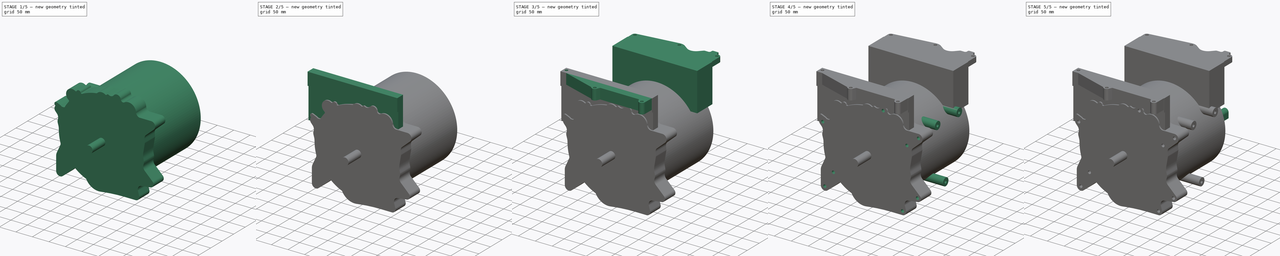
[diagram: build sequence overview — one tinted view per stage of 5, left to right]
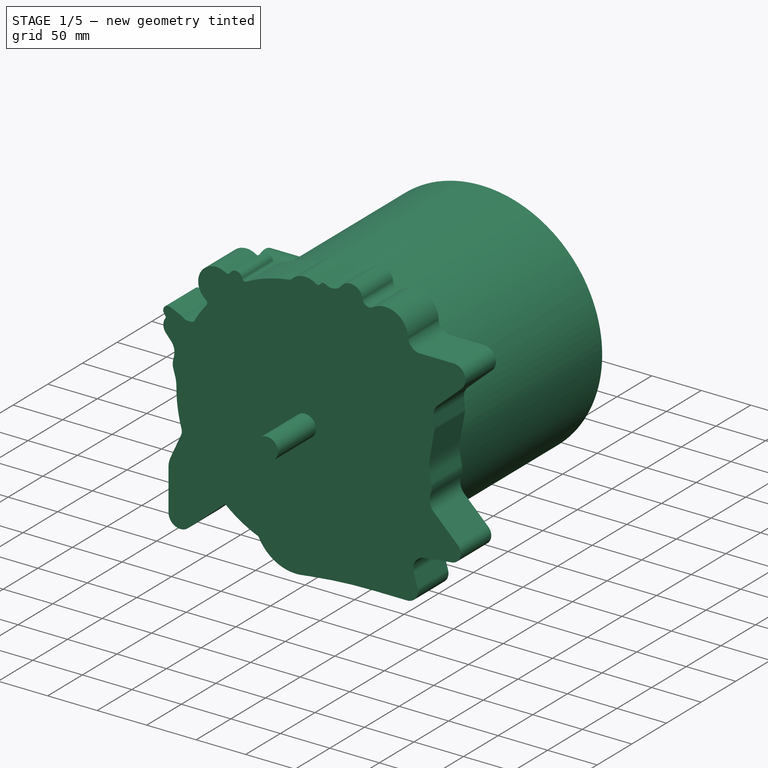
[diagram: stage 1 of 5 — iso view after this stage's code; geometry added in this stage tinted green]
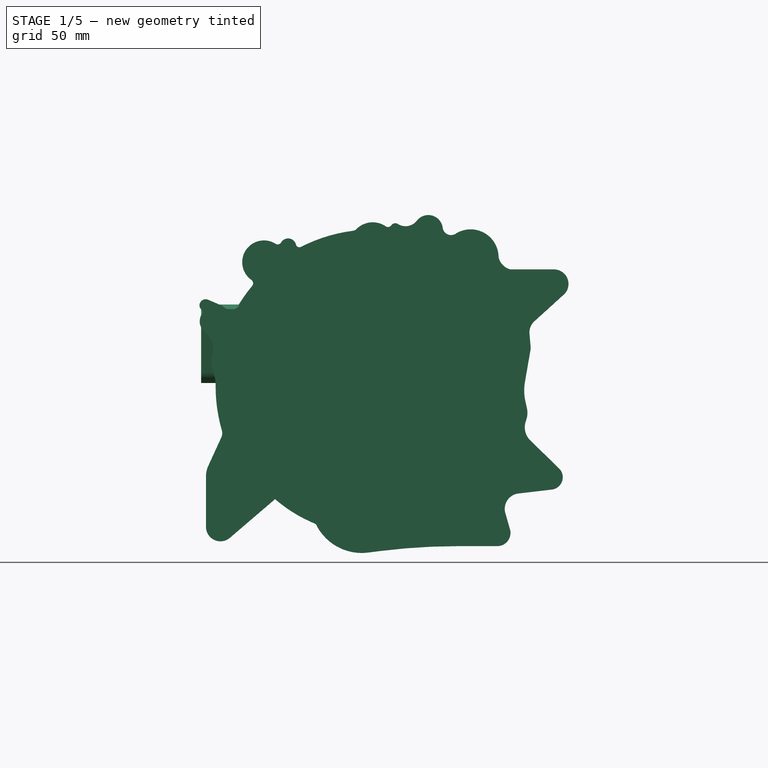
[diagram: stage 1 of 5 — front view after this stage's code; geometry added in this stage tinted green]
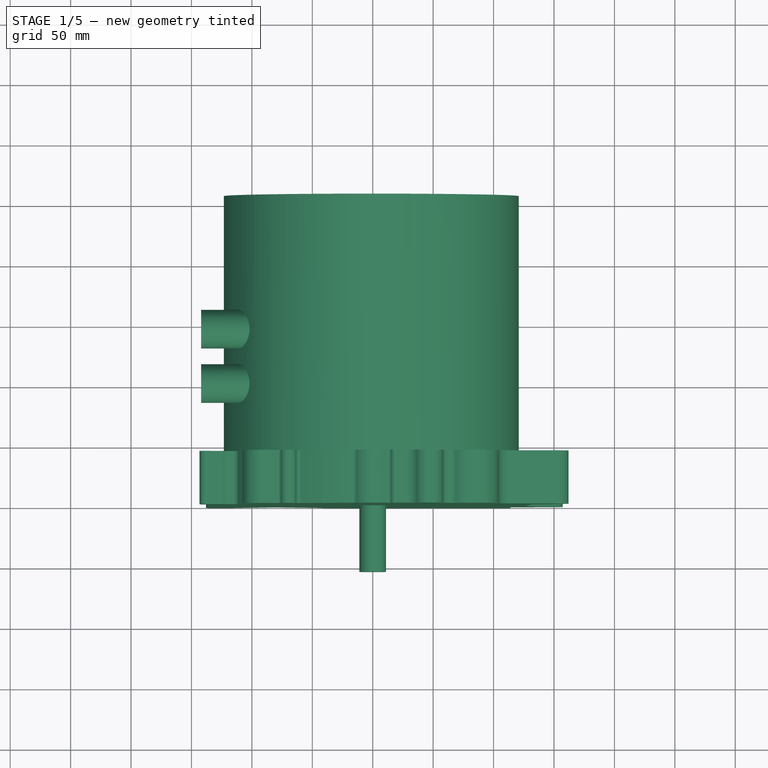
[diagram: stage 1 of 5 — top view after this stage's code; geometry added in this stage tinted green]
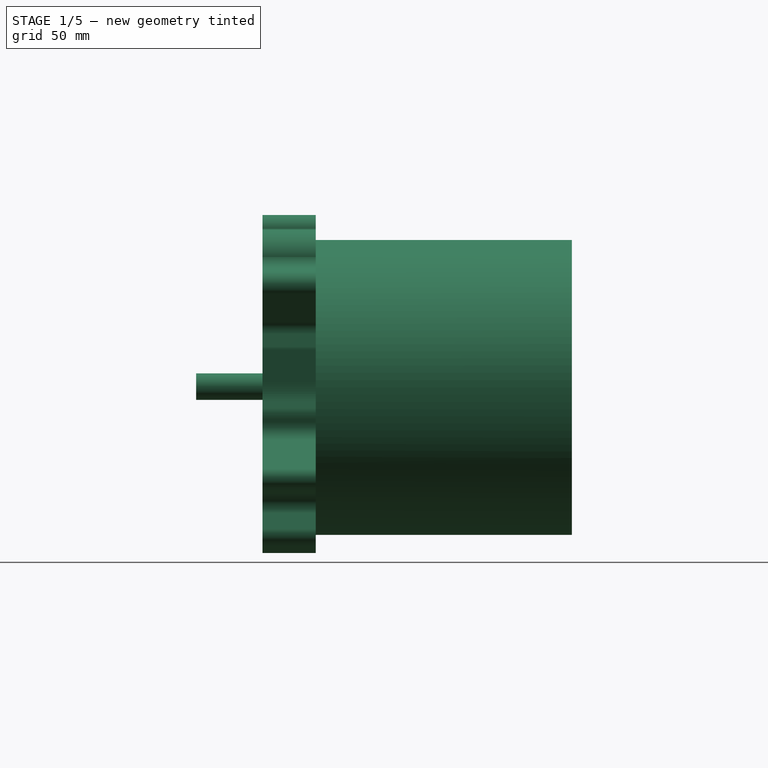
[diagram: stage 1 of 5 — right view after this stage's code; geometry added in this stage tinted green]
FCSTD DOCUMENT  (FreeCAD 0.19R21125 (Git))
Label: LEAF_MOTOR_simplified
License: All rights reserved
LicenseURL: http://en.wikipedia.org/wiki/All_rights_reserved
objects: Sketcher::SketchObject×21, PartDesign::Pad×16, PartDesign::Hole×5, PartDesign::Plane×2, PartDesign::Body×1
note: 66 computed .brp shape members not serialized (recipe doc carries the construction recipe); baked Part::Feature solids carry a one-line shape summary decoded from their .brp

FEATURE [Sketcher::SketchObject] Sketch
  MapMode = 5
  Placement = pos=(0,0,0) rot=(1,0,0;1.5708rad)
  Support = -> [XZ_Plane]
  sketch-geometry (1):
    g0: Circle CenterX=0 CenterY=0 CenterZ=0 NormalX=0 NormalY=0 NormalZ=1 AngleXU=0 Radius=11
  constraints (2):
    c: Coincident(g0,g-1)
    c: Radius(g0) = 11
FEATURE [PartDesign::Pad] Pad  label="shaft"
  Length = 55
  Length2 = 100
  Placement = pos=(0,0,0) rot=(1,0,0;1.5708rad)
  Profile = -> Sketch
  Type = 0
FEATURE [Sketcher::SketchObject] Sketch001
  MapMode = 5
  Placement = pos=(0,0,0) rot=(1,0,0;1.5708rad)
  Support = -> [XZ_Plane]
  sketch-geometry (78):
    g0: Circle [constr] CenterX=150 CenterY=85 CenterZ=0 NormalX=0 NormalY=0 NormalZ=1 AngleXU=0 Radius=5
    g1: Circle [constr] CenterX=46 CenterY=130 CenterZ=0 NormalX=0 NormalY=0 NormalZ=1 AngleXU=0 Radius=5
    g2: Circle [constr] CenterX=147 CenterY=-75 CenterZ=0 NormalX=0 NormalY=0 NormalZ=1 AngleXU=0 Radius=5
    g3: Circle [constr] CenterX=103 CenterY=-121 CenterZ=0 NormalX=0 NormalY=0 NormalZ=1 AngleXU=0 Radius=5
    g4: Circle [constr] CenterX=-126 CenterY=-116 CenterZ=0 NormalX=0 NormalY=0 NormalZ=1 AngleXU=0 Radius=5
    g5: Circle [constr] CenterX=-132.207 CenterY=54 CenterZ=0 NormalX=0 NormalY=0 NormalZ=1 AngleXU=0 Radius=5
    g6: ArcOfCircle CenterX=81 CenterY=107 CenterZ=0 NormalX=0 NormalY=0 NormalZ=1 AngleXU=0 Radius=23.154 StartAngle=0.0103918 EndAngle=2.12634
    g7: Circle [constr] CenterX=116 CenterY=57 CenterZ=0 NormalX=0 NormalY=0 NormalZ=1 AngleXU=0 Radius=5
    g8: Circle [constr] CenterX=-100.79 CenterY=-72.38 CenterZ=0 NormalX=0 NormalY=0 NormalZ=1 AngleXU=0 Radius=5.7521
    g9: LineSegment StartX=-77.4161 StartY=-90.1739 StartZ=0 EndX=-118.192 EndY=-125.112 EndZ=0
    g10: LineSegment StartX=-138 StartY=-74.6329 StartZ=0 EndX=-138 EndY=-116 EndZ=0
    g11: ArcOfCircle CenterX=-126 CenterY=-116 CenterZ=0 NormalX=0 NormalY=0 NormalZ=1 AngleXU=0 Radius=12 StartAngle=3.14159 EndAngle=5.42084
    g12: GeomPoint X=-126 Y=-116 Z=0
    g13: GeomPoint X=-126 Y=-116 Z=0
    g14: GeomPoint X=-126 Y=-116 Z=0
    g15: GeomPoint X=-126 Y=-116 Z=0
    g16: GeomPoint X=-126 Y=-116 Z=0
    g17: GeomPoint X=-126 Y=-116 Z=0
    g18: GeomPoint X=-126 Y=-116 Z=0
    g19: LineSegment StartX=-58.04 StartY=-93.7258 StartZ=0 EndX=-46.0497 EndY=-115.687 EndZ=0
    g20: LineSegment StartX=-3.71911 StartY=-137.295 StartZ=0 EndX=5.85598 EndY=-136.071 EndZ=0
    g21: LineSegment StartX=69.8211 StartY=-132 StartZ=0 EndX=103 EndY=-132 EndZ=0
    g22: LineSegment StartX=113.568 StartY=-117.947 StartZ=0 EndX=109.734 EndY=-104.675 EndZ=0
    g23: LineSegment StartX=120.513 StartY=-88.4413 StartZ=0 EndX=148.199 EndY=-85.179 EndZ=0
    g24: LineSegment StartX=154.159 StartY=-67.6655 StartZ=0 EndX=130.361 EndY=-44.4351 EndZ=0
    g25: ArcOfCircle CenterX=147 CenterY=-75 CenterZ=0 NormalX=0 NormalY=0 NormalZ=1 AngleXU=0 Radius=10.2495 StartAngle=4.82968 EndAngle=7.08066
    g26: ArcOfCircle CenterX=103 CenterY=-121 CenterZ=0 NormalX=0 NormalY=0 NormalZ=1 AngleXU=0 Radius=11 StartAngle=4.71239 EndAngle=6.56438
    g27: ArcOfCircle CenterX=122.008 CenterY=-101.129 CenterZ=0 NormalX=0 NormalY=0 NormalZ=1 AngleXU=0 Radius=12.7758 StartAngle=1.68809 EndAngle=3.42279
    g28: ArcOfCircle CenterX=-69.1673 CenterY=-99.801 CenterZ=0 NormalX=0 NormalY=0 NormalZ=1 AngleXU=0 Radius=12.6777 StartAngle=0.499747 EndAngle=2.27925
    g29: ArcOfCircle CenterX=-9.06145 CenterY=-95.4924 CenterZ=0 NormalX=0 NormalY=0 NormalZ=1 AngleXU=0 Radius=42.1421 StartAngle=3.64134 EndAngle=4.8395
    g30: ArcOfCircle CenterX=69.8211 CenterY=-636.578 CenterZ=0 NormalX=0 NormalY=0 NormalZ=1 AngleXU=0 Radius=504.578 StartAngle=1.5708 EndAngle=1.69791
    g31: LineSegment StartX=-135.96 StartY=-65.2877 StartZ=0 EndX=-125.316 EndY=-42.0647 EndZ=0
    g32: ArcOfCircle CenterX=0 CenterY=0 CenterZ=0 NormalX=0 NormalY=0 NormalZ=1 AngleXU=0 Radius=130 StartAngle=3.13557 EndAngle=3.42329
    g33: ArcOfCircle CenterX=0 CenterY=0 CenterZ=0 NormalX=0 NormalY=0 NormalZ=1 AngleXU=0 Radius=130 StartAngle=2.44565 EndAngle=2.58841
    g34: ArcOfCircle CenterX=0 CenterY=0 CenterZ=0 NormalX=0 NormalY=0 NormalZ=1 AngleXU=0 Radius=130 StartAngle=1.69685 EndAngle=2.04477
    g35: LineSegment StartX=114.013 StartY=97 StartZ=0 EndX=150 EndY=97 EndZ=0
    g36: LineSegment StartX=158.063 StartY=76.1125 StartZ=0 EndX=133.756 EndY=54.0603 EndZ=0
    g37: LineSegment StartX=129.714 StartY=43.7288 StartZ=0 EndX=130.666 EndY=32.9552 EndZ=0
    g38: LineSegment StartX=130.558 StartY=30.391 StartZ=0 EndX=125.948 EndY=3.90191 EndZ=0
    g39: LineSegment StartX=126.298 StartY=-11.9691 StartZ=0 EndX=127.597 EndY=-17.879 EndZ=0
    g40: LineSegment StartX=127.201 StartY=-26.9734 StartZ=0 EndX=126.512 EndY=-29.1737 EndZ=0
    g41: LineSegment StartX=-131.228 StartY=9.85746 StartZ=0 EndX=-133.194 EndY=16.8065 EndZ=0
    g42: LineSegment StartX=-133.349 StartY=24.3098 StartZ=0 EndX=-132.386 EndY=28.3425 EndZ=0
    g43: LineSegment StartX=-135.662 StartY=41.3651 StartZ=0 EndX=-140.41 EndY=46.6999 EndZ=0
    g44: ArcOfCircle CenterX=-132.207 CenterY=54 CenterZ=0 NormalX=0 NormalY=0 NormalZ=1 AngleXU=0 Radius=10.9808 StartAngle=2.50415 EndAngle=3.86883
    g45: ArcOfCircle CenterX=-115.415 CenterY=68.949 CenterZ=0 NormalX=0 NormalY=0 NormalZ=1 AngleXU=0 Radius=4.84731 StartAngle=4.71239 EndAngle=6.1493
    g46: ArcOfCircle CenterX=-132.207 CenterY=54 CenterZ=0 NormalX=0 NormalY=0 NormalZ=1 AngleXU=0 Radius=14.8976 StartAngle=0.883402 EndAngle=1.19998
    g47: ArcOfCircle CenterX=-138.242 CenterY=67.2462 CenterZ=0 NormalX=0 NormalY=0 NormalZ=1 AngleXU=0 Radius=5.10643 StartAngle=1.16437 EndAngle=3.45454
    g48: LineSegment StartX=-140.953 StartY=62.0518 StartZ=0 EndX=-143.1 EndY=65.6741 EndZ=0
    g49: LineSegment StartX=-126.832 StartY=67.8948 StartZ=0 EndX=-136.223 EndY=71.9366 EndZ=0
    g50: LineSegment StartX=-118.807 StartY=64.1017 StartZ=0 EndX=-115.415 EndY=64.1017 EndZ=0
    g51: ArcOfCircle CenterX=-70 CenterY=116 CenterZ=0 NormalX=0 NormalY=0 NormalZ=1 AngleXU=0 Radius=6.67349 StartAngle=0.239146 EndAngle=2.6178
    g52: ArcOfCircle CenterX=-90 CenterY=103 CenterZ=0 NormalX=0 NormalY=0 NormalZ=1 AngleXU=0 Radius=18 StartAngle=1.00635 EndAngle=4.09548
    g53: ArcOfCircle CenterX=0 CenterY=117 CenterZ=0 NormalX=0 NormalY=0 NormalZ=1 AngleXU=0 Radius=19 StartAngle=0.971704 EndAngle=2.36091
    g54: ArcOfCircle CenterX=18.6463 CenterY=131.306 CenterZ=0 NormalX=0 NormalY=0 NormalZ=1 AngleXU=0 Radius=3.94032 StartAngle=1.00101 EndAngle=2.53389
    g55: ArcOfCircle CenterX=46 CenterY=130 CenterZ=0 NormalX=0 NormalY=0 NormalZ=1 AngleXU=0 Radius=12 StartAngle=0.126109 EndAngle=2.48296
    g56: ArcOfCircle CenterX=64.8107 CenterY=132.385 CenterZ=0 NormalX=0 NormalY=0 NormalZ=1 AngleXU=0 Radius=6.96126 StartAngle=3.2677 EndAngle=5.32061
    g57: ArcOfCircle CenterX=117.11 CenterY=109.85 CenterZ=0 NormalX=0 NormalY=0 NormalZ=1 AngleXU=0 Radius=13.2176 StartAngle=3.34029 EndAngle=4.47587
    g58: ArcOfCircle CenterX=150 CenterY=85 CenterZ=0 NormalX=0 NormalY=0 NormalZ=1 AngleXU=0 Radius=12 StartAngle=5.44919 EndAngle=7.85398
    g59: ArcOfCircle CenterX=142.133 CenterY=44.8263 CenterZ=0 NormalX=0 NormalY=0 NormalZ=1 AngleXU=0 Radius=12.4679 StartAngle=2.30759 EndAngle=3.22973
    g60: ArcOfCircle CenterX=166.44 CenterY=-3.14512 CenterZ=0 NormalX=0 NormalY=0 NormalZ=1 AngleXU=0 Radius=41.1006 StartAngle=2.96928 EndAngle=3.35797
    g61: ArcOfCircle CenterX=110.297 CenterY=-21.6818 CenterZ=0 NormalX=0 NormalY=0 NormalZ=1 AngleXU=0 Radius=17.7126 StartAngle=5.9798 EndAngle=6.49956
    g62: ArcOfCircle CenterX=140.871 CenterY=-33.6685 CenterZ=0 NormalX=0 NormalY=0 NormalZ=1 AngleXU=0 Radius=15.0456 StartAngle=2.83821 EndAngle=3.93907
    g63: ArcOfCircle CenterX=-102.388 CenterY=85.5332 CenterZ=0 NormalX=0 NormalY=0 NormalZ=1 AngleXU=0 Radius=3.41397 StartAngle=5.58724 EndAngle=7.23708
    g64: ArcOfCircle CenterX=-78.6173 CenterY=120.977 CenterZ=0 NormalX=0 NormalY=0 NormalZ=1 AngleXU=0 Radius=3.27803 StartAngle=4.14794 EndAngle=5.75939
    g65: ArcOfCircle CenterX=-60.6717 CenterY=118.274 CenterZ=0 NormalX=0 NormalY=0 NormalZ=1 AngleXU=0 Radius=2.92808 StartAngle=3.38074 EndAngle=5.18636
    g66: ArcOfCircle CenterX=27.154 CenterY=144.585 CenterZ=0 NormalX=0 NormalY=0 NormalZ=1 AngleXU=0 Radius=11.8306 StartAngle=4.1426 EndAngle=5.62455
    g67: ArcOfCircle CenterX=-16.9555 CenterY=133.796 CenterZ=0 NormalX=0 NormalY=0 NormalZ=1 AngleXU=0 Radius=4.86647 StartAngle=4.83844 EndAngle=5.5025
    g68: ArcOfCircle CenterX=12.6267 CenterY=135.492 CenterZ=0 NormalX=0 NormalY=0 NormalZ=1 AngleXU=0 Radius=3.39205 StartAngle=4.1133 EndAngle=5.67548
    g69: ArcOfCircle CenterX=120.822 CenterY=32.0854 CenterZ=0 NormalX=0 NormalY=0 NormalZ=1 AngleXU=0 Radius=9.88201 StartAngle=6.11088 EndAngle=6.37132
    g70: ArcOfCircle CenterX=-115.572 CenterY=-74.6329 CenterZ=0 NormalX=0 NormalY=0 NormalZ=1 AngleXU=0 Radius=22.4282 StartAngle=2.71181 EndAngle=3.14159
    g71: ArcOfCircle CenterX=-133.072 CenterY=-38.5095 CenterZ=0 NormalX=0 NormalY=0 NormalZ=1 AngleXU=0 Radius=8.53226 StartAngle=5.8534 EndAngle=6.56488
    g72: ArcOfCircle CenterX=-146.507 CenterY=31.7136 CenterZ=0 NormalX=0 NormalY=0 NormalZ=1 AngleXU=0 Radius=14.5177 StartAngle=6.04884 EndAngle=7.01043
    g73: ArcOfCircle CenterX=-118.879 CenterY=20.8553 CenterZ=0 NormalX=0 NormalY=0 NormalZ=1 AngleXU=0 Radius=14.8767 StartAngle=2.90724 EndAngle=3.41722
    g74: ArcOfCircle CenterX=-126.546 CenterY=68.5598 CenterZ=0 NormalX=0 NormalY=0 NormalZ=1 AngleXU=0 Radius=0.723918 StartAngle=4.30596 EndAngle=4.34157
    g75: ArcOfCircle CenterX=-142.134 CenterY=61.352 CenterZ=0 NormalX=0 NormalY=0 NormalZ=1 AngleXU=0 Radius=1.37254 StartAngle=5.64574 EndAngle=6.81818
    g76: ArcOfCircle CenterX=-118.807 CenterY=70.3225 CenterZ=0 NormalX=0 NormalY=0 NormalZ=1 AngleXU=0 Radius=6.22086 StartAngle=4.025 EndAngle=4.71239
    g77: ArcOfCircle CenterX=-162.618 CenterY=0.97969 CenterZ=0 NormalX=0 NormalY=0 NormalZ=1 AngleXU=0 Radius=32.6205 StartAngle=6.27716 EndAngle=6.55881
  constraints (127):
    c: Vertical(g10)
    c: Tangent(g9,g11) = 1.5708
    c: Tangent(g10,g11) = -1.5708
    c: DistanceY(g-1,g1) = 130
    c: DistanceY(g-1,g6) = 107
    c: DistanceY(g-1,g7) = 57
    c: DistanceY(g-1,g0) = 85
    c: DistanceY(g2,g-1) = 75
    c: DistanceY(g3,g-1) = 121
    c: DistanceY(g-1,g5) = 54
    c: DistanceX(g5,g-1) = 132.207
    c: DistanceX(g8,g-1) = 100.79
    c: DistanceY(g8,g-1) = 72.38
    c: DistanceX(g-1,g1) = 46
    c: DistanceX(g-1,g6) = 81
    c: DistanceX(g-1,g7) = 116
    c: DistanceX(g-1,g0) = 150
    c: DistanceX(g-1,g2) = 147
    c: DistanceX(g-1,g3) = 103
    c: Coincident(g12,g11)
    c: Coincident(g13,g4)
    c: Coincident(g14,g11)
    c: Coincident(g15,g4)
    c: Coincident(g16,g4)
    c: Coincident(g17,g11)
    c: Coincident(g18,g4)
    c: Coincident(g4,g11)
    c: Horizontal(g21)
    c: Tangent(g23,g25) = -1.5708
    c: Tangent(g24,g25) = -1.5708
    c: Tangent(g21,g26) = -1.5708
    c: Tangent(g22,g26) = -1.5708
    c: Coincident(g26,g3)
    c: Coincident(g25,g2)
    c: Tangent(g23,g27) = 1.5708
    c: Tangent(g22,g27) = 1.5708
    c: Tangent(g9,g28) = -1.5708
    c: Tangent(g19,g28) = 1.5708
    c: Tangent(g19,g29) = -1.5708
    c: Tangent(g20,g29) = -1.5708
    c: Tangent(g20,g30) = 1.5708
    c: Tangent(g21,g30) = 1.5708
    c: Radius(g26) = 11
    c: Equal(g3,g4)
    c: Equal(g4,g2)
    c: Equal(g2,g0)
    c: Equal(g0,g7)
    c: Equal(g7,g1)
    c: Equal(g1,g5)
    c: Radius(g3) = 5
    c: Coincident(g32,g-1)
    c: Coincident(g33,g32)
    c: Coincident(g34,g32)
    c: Equal(g32,g33)
    c: Equal(g33,g34)
    c: Radius(g32) = 130
    c: Radius(g11) = 12
    c: Horizontal(g35)
    c: Coincident(g44,g5)
    c: Coincident(g44,g43)
    c: Coincident(g45,g33)
    c: Coincident(g46,g5)
    c: Coincident(g48,g47)
    c: Coincident(g49,g47)
    c: Coincident(g50,g45)
    c: Horizontal(g50)
    c: Coincident(g55,g1)
    c: Coincident(g56,g55)
    c: Coincident(g35,g57)
    c: Coincident(g6,g57)
    c: Coincident(g6,g56)
    c: Tangent(g36,g58) = 1.5708
    c: Tangent(g35,g58) = 1.5708
    c: Tangent(g37,g59) = -1.5708
    c: Tangent(g36,g59) = -1.5708
    c: Tangent(g38,g60) = -1.5708
    c: Tangent(g39,g60) = -1.5708
    c: Tangent(g39,g61) = 1.5708
    c: Tangent(g40,g61) = 1.5708
    c: Tangent(g24,g62) = 1.5708
    c: Tangent(g40,g62) = -1.5708
    c: Tangent(g33,g63) = 1.5708
    c: Tangent(g52,g63) = 1.5708
    c: Tangent(g51,g64) = 1.5708
    c: Tangent(g52,g64) = 1.5708
    c: Tangent(g51,g65) = 1.5708
    c: Tangent(g34,g65) = 1.5708
    c: DistanceX(g52,g32) = 90
    c: DistanceY(g32,g52) = 103
    c: Coincident(g55,g66)
    c: Coincident(g54,g66)
    c: Tangent(g53,g67) = 1.5708
    c: Tangent(g34,g67) = 1.5708
    c: Tangent(g54,g68) = 1.5708
    c: Tangent(g53,g68) = 1.5708
    c: Coincident(g58,g0)
    c: Tangent(g37,g69) = 1.5708
    c: Tangent(g38,g69) = 1.5708
    c: Tangent(g10,g70) = -1.5708
    c: Tangent(g31,g70) = 1.5708
    c: Tangent(g31,g71) = -1.5708
    c: Tangent(g32,g71) = 1.5708
    c: Tangent(g42,g72) = -1.5708
    c: Tangent(g43,g72) = -1.5708
    c: Tangent(g42,g73) = 1.5708
    c: Tangent(g41,g73) = 1.5708
    c: Tangent(g46,g74) = 1.5708
    c: Tangent(g49,g74) = 1.5708
    c: Tangent(g44,g75) = 1.5708
    c: Tangent(g48,g75) = -1.5708
    c: Tangent(g50,g76) = -1.5708
    c: Tangent(g46,g76) = 1.5708
    c: Tangent(g45,g50)
    c: Tangent(g49,g47)
    c: DistanceY(g4,g32) = 116
    c: DistanceX(g4,g32) = 126
    c: PointOnObject(g53,g-2)
    c: DistanceY(g32,g53) = 117
    c: Radius(g55) = 12
    c: Radius(g53) = 19
    c: Radius(g52) = 18
    c: Radius(g58) = 12
    c: Tangent(g32,g77) = 1.5708
    c: Tangent(g41,g77) = -1.5708
    c: DistanceX(g51,g32) = 70
    c: DistanceY(g32,g51) = 116
    c: DistanceX(g19,g32) = 58.04
FEATURE [PartDesign::Pad] Pad001  label="mount_flange"
  BaseFeature = -> Pad
  Length = 44
  Length2 = 100
  Placement = pos=(0,0,0) rot=(1,0,0;1.5708rad)
  Profile = -> Sketch001
  Reversed = true
  Type = 0
FEATURE [Sketcher::SketchObject] Sketch002
  MapMode = 5
  Placement = pos=(0,0,0) rot=(1,0,0;1.5708rad)
  Support = -> [XZ_Plane]
  sketch-geometry (1):
    g0: Circle CenterX=-1.16419 CenterY=-0.6689 CenterZ=0 NormalX=0 NormalY=0 NormalZ=1 AngleXU=0 Radius=122
  constraints (1):
    c: Radius(g0) = 122
FEATURE [PartDesign::Pad] Pad002  label="Motor_Body"
  BaseFeature = -> Pad001
  Length = 256
  Length2 = 100
  Placement = pos=(0,0,0) rot=(1,0,0;1.5708rad)
  Profile = -> Sketch002
  Reversed = true
  Type = 0
FEATURE [Sketcher::SketchObject] Sketch003
  MapMode = 5
  Placement = pos=(0,0,0) rot=(0.57735,0.57735,0.57735;2.0944rad)
  Support = -> [YZ_Plane]
  sketch-geometry (8):
    g0: ArcOfCircle CenterX=145 CenterY=52 CenterZ=0 NormalX=0 NormalY=0 NormalZ=1 AngleXU=0 Radius=16 StartAngle=6.04977 EndAngle=9.47687
    g1: ArcOfCircle CenterX=100 CenterY=52 CenterZ=0 NormalX=0 NormalY=0 NormalZ=1 AngleXU=0 Radius=16 StartAngle=6.13984 EndAngle=9.56813
    g2: ArcOfCircle CenterX=100 CenterY=13.5 CenterZ=0 NormalX=0 NormalY=0 NormalZ=1 AngleXU=0 Radius=10.5 StartAngle=3.28494 EndAngle=6.13983
    g3: ArcOfCircle CenterX=141.5 CenterY=13.5 CenterZ=0 NormalX=0 NormalY=0 NormalZ=1 AngleXU=0 Radius=10.5 StartAngle=3.19369 EndAngle=6.04977
    g4: LineSegment StartX=110.392 StartY=12 StartZ=0 EndX=115.836 EndY=49.7143 EndZ=0
    g5: LineSegment StartX=89.6077 StartY=12 StartZ=0 EndX=84.1641 EndY=49.7143 EndZ=0
    g6: LineSegment StartX=131.014 StartY=12.9532 StartZ=0 EndX=129.022 EndY=51.1669 EndZ=0
    g7: LineSegment StartX=151.715 StartY=11.0713 StartZ=0 EndX=160.566 EndY=48.2992 EndZ=0
  constraints (27):
    c: Equal(g3,g2)
    c: Equal(g1,g0)
    c: Coincident(g2,g5)
    c: Coincident(g1,g4)
    c: Coincident(g6,g3)
    c: Tangent(g3,g7) = -1.5708
    c: Tangent(g1,g4)
    c: Coincident(g0,g7)
    c: Tangent(g7,g0)
    c: Coincident(g6,g0)
    c: Coincident(g5,g1)
    c: Tangent(g5,g1)
    c: Tangent(g6,g0)
    c: Radius(g0) = 16
    c: Radius(g3) = 10.5
    c: DistanceX(g1,g0) = 45
    c: DistanceX(g2,g3) = 41.5
    c: DistanceX(g-1,g2) = 100
    c: DistanceX(g-1,g1) = 100
    c: Coincident(g4,g2)
    c: Tangent(g2,g4)
    c: Tangent(g2,g5)
    c: DistanceY(g-1,g2) = 13.5
    c: DistanceY(g-1,g1) = 52
    c: Horizontal(g3,g2)
    c: Horizontal(g0,g1)
    c: Tangent(g3,g6)
FEATURE [PartDesign::Pad] Pad003  label="water_port_bosses"
  BaseFeature = -> Pad002
  Length = 142
  Length2 = 100
  Placement = pos=(0,0,0) rot=(1,0,0;1.5708rad)
  Profile = -> Sketch003
  Reversed = true
  Type = 0
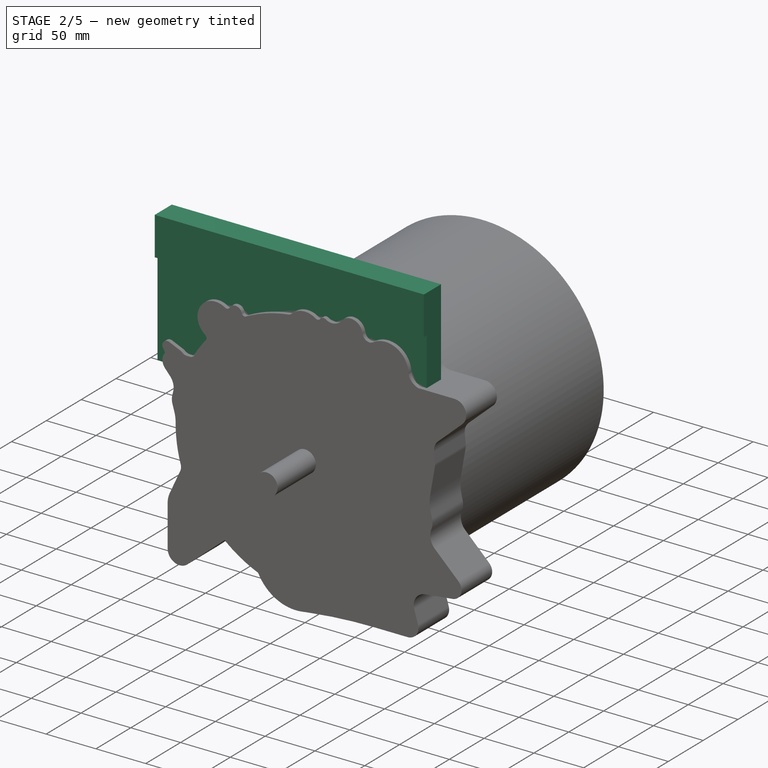
[diagram: stage 2 of 5 — iso view after this stage's code; geometry added in this stage tinted green]
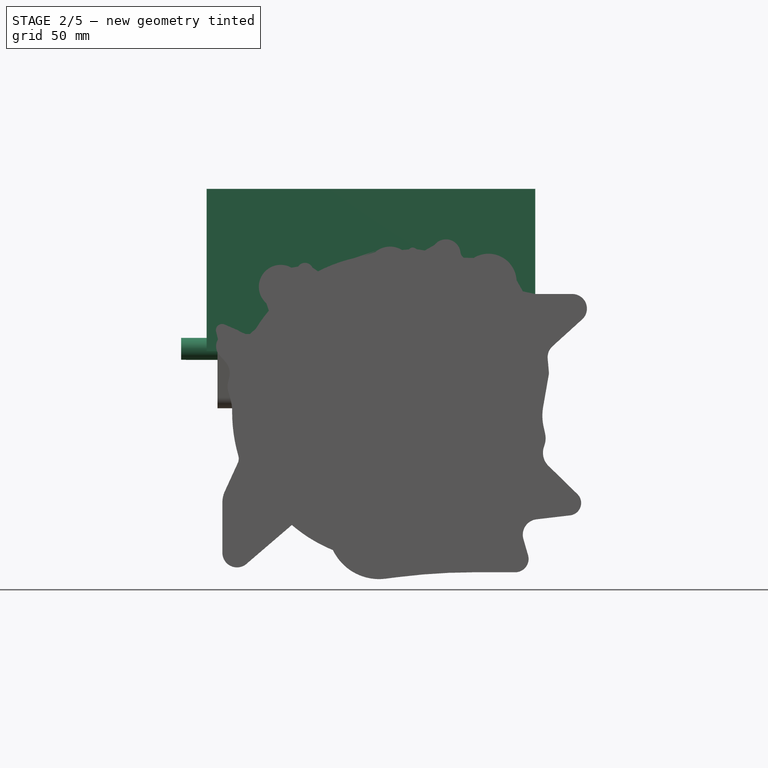
[diagram: stage 2 of 5 — front view after this stage's code; geometry added in this stage tinted green]
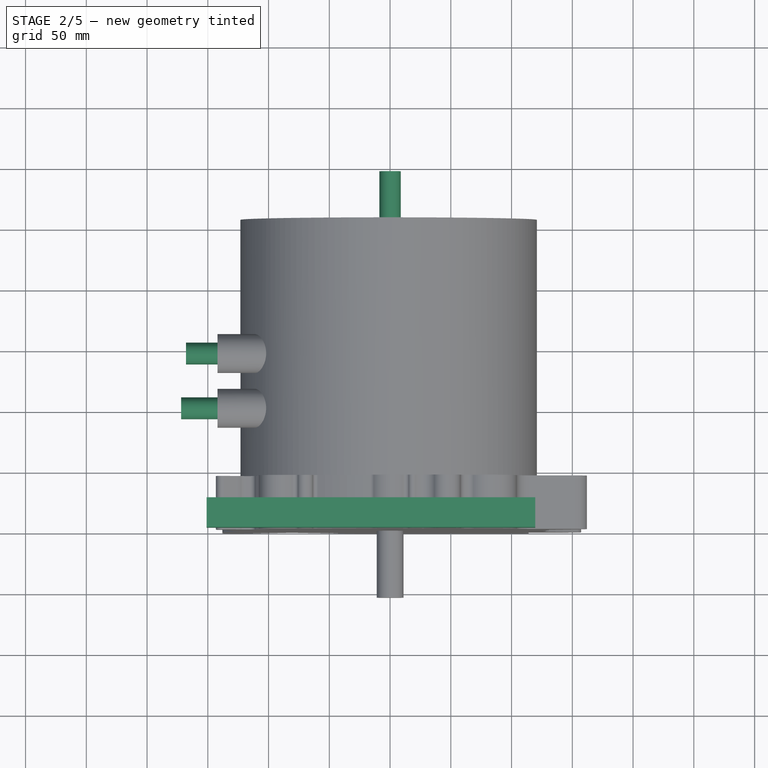
[diagram: stage 2 of 5 — top view after this stage's code; geometry added in this stage tinted green]
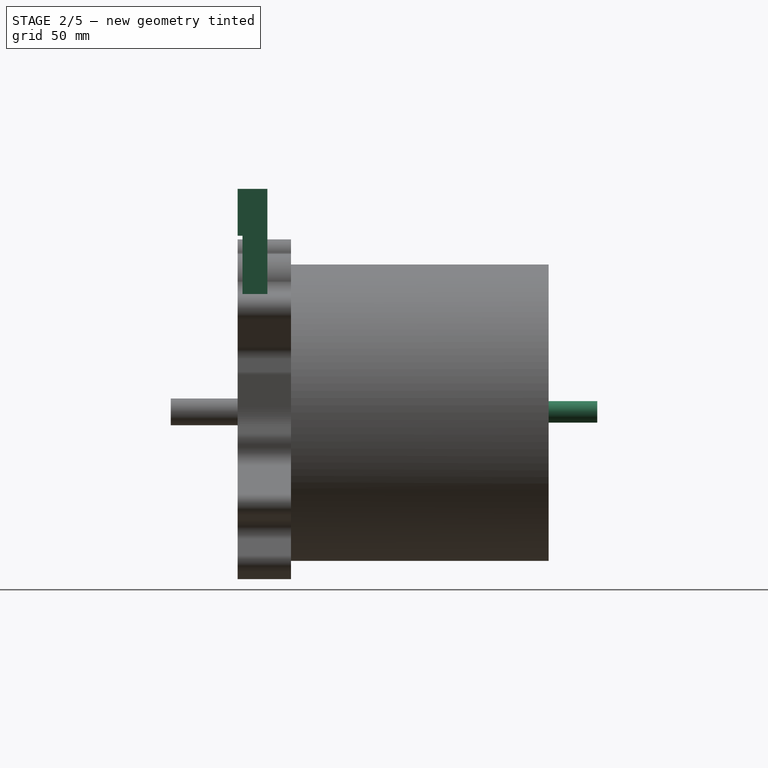
[diagram: stage 2 of 5 — right view after this stage's code; geometry added in this stage tinted green]
FEATURE [Sketcher::SketchObject] Sketch004
  MapMode = 5
  Placement = pos=(-142,3.12e-14,-3.12e-14) rot=(0.707107,0,-0.707107;3.14159rad)
  Support = -> [Pad003]
  sketch-geometry (2):
    g0: Circle CenterX=-51.9006 CenterY=-100 CenterZ=0 NormalX=0 NormalY=0 NormalZ=1 AngleXU=0 Radius=7
    g1: Circle CenterX=-51.9006 CenterY=-100 CenterZ=0 NormalX=0 NormalY=0 NormalZ=1 AngleXU=0 Radius=9
  constraints (3):
    c: DistanceY(g0,g-1) = 100
    c: Radius(g1) = 9
    c: Radius(g0) = 7
FEATURE [PartDesign::Pad] Pad004  label="Cooling_port_1"
  BaseFeature = -> Pad003
  Length = 30
  Length2 = 100
  Placement = pos=(0,0,0) rot=(1,0,0;1.5708rad)
  Profile = -> Sketch004
  Type = 0
FEATURE [Sketcher::SketchObject] Sketch005
  MapMode = 5
  Placement = pos=(-142,3.12e-14,-3.12e-14) rot=(0.707107,0,-0.707107;3.14159rad)
  Support = -> [Pad004]
  sketch-geometry (2):
    g0: Circle CenterX=-51.8558 CenterY=-145.052 CenterZ=0 NormalX=0 NormalY=0 NormalZ=1 AngleXU=0 Radius=6.41055
    g1: Circle CenterX=-51.8558 CenterY=-145.052 CenterZ=0 NormalX=0 NormalY=0 NormalZ=1 AngleXU=0 Radius=9.02917
FEATURE [PartDesign::Pad] Pad005  label="Cooling_Port_2"
  BaseFeature = -> Pad004
  Length = 26
  Length2 = 100
  Placement = pos=(0,0,0) rot=(1,0,0;1.5708rad)
  Profile = -> Sketch005
  Type = 0
FEATURE [Sketcher::SketchObject] Sketch006
  MapMode = 5
  Placement = pos=(0,0,0) rot=(1,0,0;1.5708rad)
  Support = -> [XZ_Plane]
  sketch-geometry (1):
    g0: Circle CenterX=0 CenterY=0 CenterZ=0 NormalX=0 NormalY=0 NormalZ=1 AngleXU=0 Radius=8.80194
  constraints (1):
    c: Coincident(g0,g-1)
FEATURE [PartDesign::Pad] Pad006  label="Rear_Center"
  BaseFeature = -> Pad005
  Length = 296
  Length2 = 100
  Placement = pos=(0,0,0) rot=(1,0,0;1.5708rad)
  Profile = -> Sketch006
  Reversed = true
  Type = 0
FEATURE [Sketcher::SketchObject] Sketch007
  MapMode = 5
  Placement = pos=(0,0,0) rot=(0.57735,0.57735,0.57735;2.0944rad)
  Support = -> [YZ_Plane]
  sketch-geometry (6):
    g0: LineSegment StartX=24.5 StartY=183.5 StartZ=0 EndX=0 EndY=183.5 EndZ=0
    g1: LineSegment StartX=0 StartY=183.5 StartZ=0 EndX=0 EndY=145 EndZ=0
    g2: LineSegment StartX=4 StartY=50 StartZ=0 EndX=24.5 EndY=50 EndZ=0
    g3: LineSegment StartX=24.5 StartY=50 StartZ=0 EndX=24.5 EndY=183.5 EndZ=0
    g4: LineSegment StartX=4 StartY=145 StartZ=0 EndX=0 EndY=145 EndZ=0
    g5: LineSegment StartX=4 StartY=50 StartZ=0 EndX=4 EndY=145 EndZ=0
  constraints (18):
    c: Coincident(g0,g1)
    c: Coincident(g2,g3)
    c: Coincident(g3,g0)
    c: Horizontal(g0)
    c: Horizontal(g2)
    c: Vertical(g1)
    c: Vertical(g3)
    c: PointOnObject(g-1,g1)
    c: DistanceY(g-1,g0) = 183.5
    c: DistanceX(g0,g0) = 24.5
    c: Coincident(g5,g4)
    c: Horizontal(g4)
    c: Vertical(g5)
    c: Coincident(g1,g4)
    c: Coincident(g5,g2)
    c: DistanceY(g-1,g1) = 145
    c: DistanceX(g-1,g2) = 4
    c: DistanceY(g-1,g2) = 50
FEATURE [PartDesign::Pad] Pad007
  BaseFeature = -> Pad006
  Length = 119.5
  Length2 = 151
  Placement = pos=(0,0,0) rot=(1,0,0;1.5708rad)
  Profile = -> Sketch007
  Type = 4
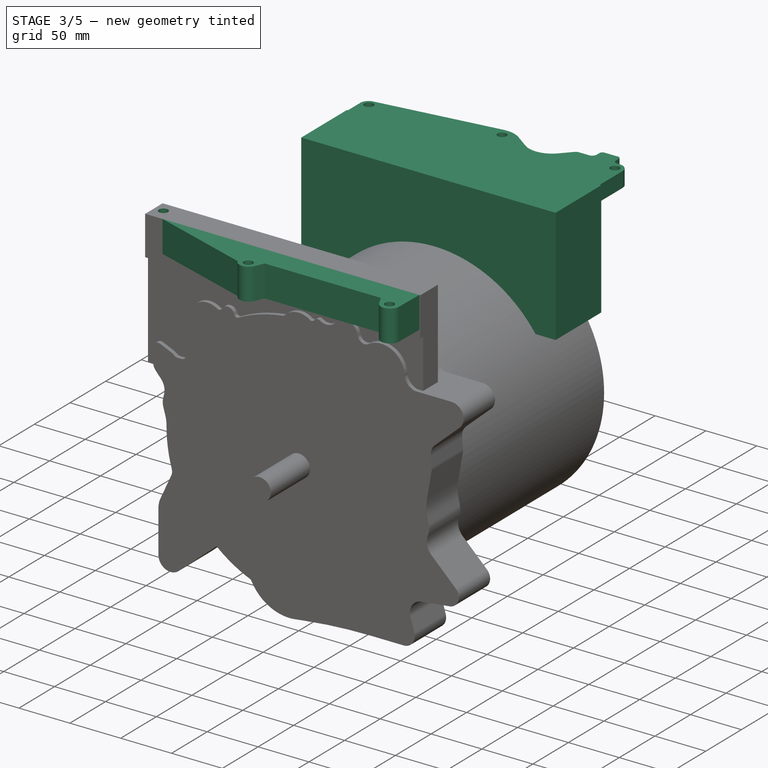
[diagram: stage 3 of 5 — iso view after this stage's code; geometry added in this stage tinted green]
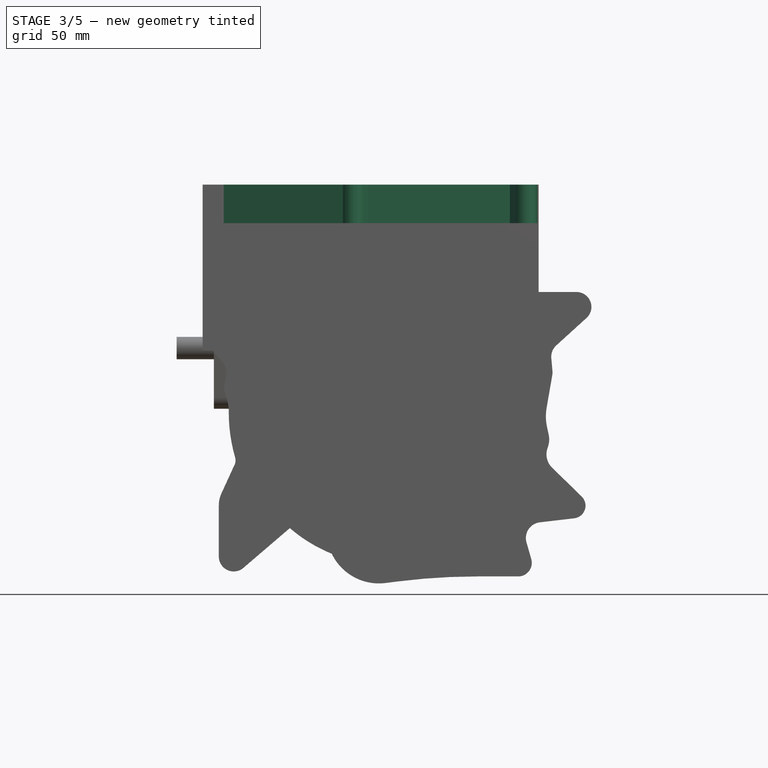
[diagram: stage 3 of 5 — front view after this stage's code; geometry added in this stage tinted green]
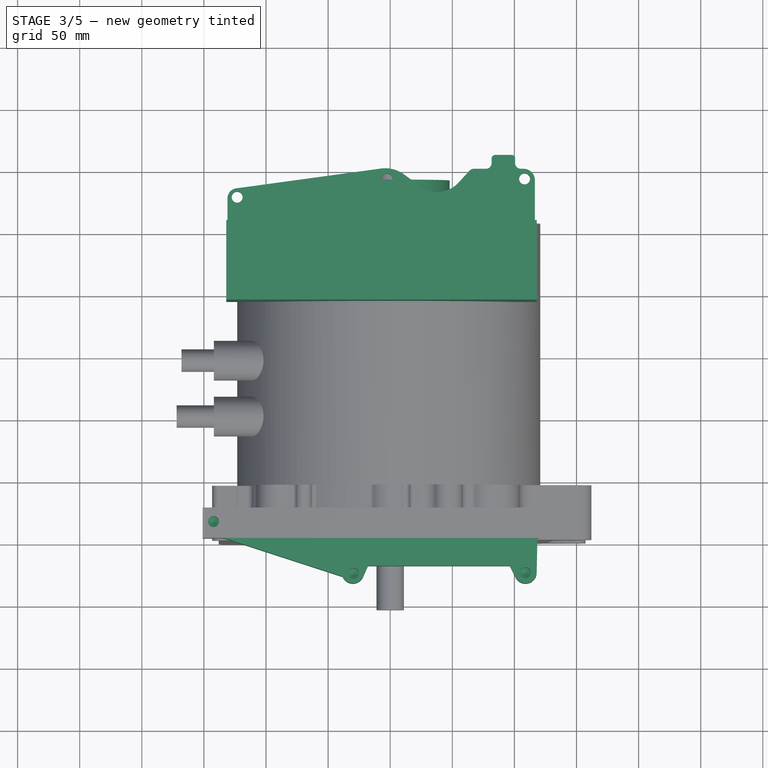
[diagram: stage 3 of 5 — top view after this stage's code; geometry added in this stage tinted green]
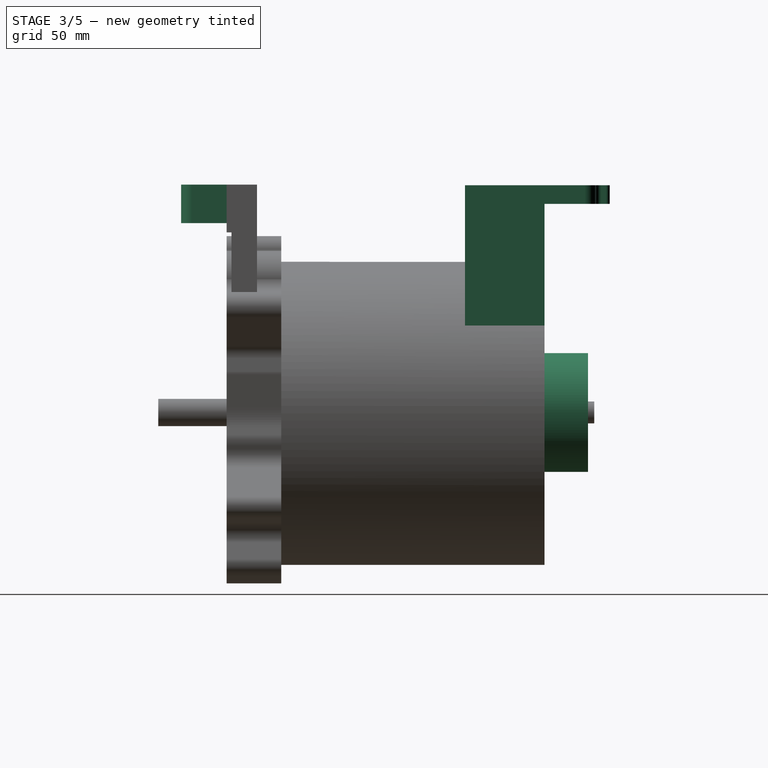
[diagram: stage 3 of 5 — right view after this stage's code; geometry added in this stage tinted green]
FEATURE [Sketcher::SketchObject] Sketch008
  MapMode = 5
  Placement = pos=(-5.14e-14,6.09e-14,183.5) rot=(0,0,1;3.14159rad)
  Support = -> [Pad007]
  sketch-geometry (8):
    g0: ArcOfCircle CenterX=30 CenterY=27.64 CenterZ=0 NormalX=0 NormalY=0 NormalZ=1 AngleXU=0 Radius=8.91907 StartAngle=0.401297 EndAngle=2.73184
    g1: ArcOfCircle CenterX=-109 CenterY=27.64 CenterZ=0 NormalX=0 NormalY=0 NormalZ=1 AngleXU=0 Radius=8.91907 StartAngle=0.465226 EndAngle=3.12065
    g2: LineSegment StartX=-117.917 StartY=27.8268 StartZ=0 EndX=-118.5 EndY=0 EndZ=0
    g3: LineSegment StartX=-118.5 StartY=0 StartZ=0 EndX=134 EndY=0 EndZ=0
    g4: LineSegment StartX=134 StartY=0 StartZ=0 EndX=38.2105 EndY=31.1239 EndZ=0
    g5: LineSegment StartX=21.8193 StartY=31.1932 StartZ=0 EndX=18 EndY=22.4 EndZ=0
    g6: LineSegment StartX=18 StartY=22.4 StartZ=0 EndX=-96.39 EndY=22.4 EndZ=0
    g7: LineSegment StartX=-96.39 StartY=22.4 StartZ=0 EndX=-101.029 EndY=31.6413 EndZ=0
  constraints (25):
    c: Equal(g1,g0)
    c: Coincident(g3,g2)
    c: Horizontal(g3)
    c: Coincident(g4,g3)
    c: Coincident(g6,g5)
    c: Horizontal(g6)
    c: Coincident(g7,g6)
    c: Coincident(g0,g4)
    c: Coincident(g0,g5)
    c: Coincident(g1,g7)
    c: Horizontal(g0,g1)
    c: PointOnObject(g-1,g3)
    c: DistanceY(g-1,g1) = 27.64
    c: DistanceX(g1,g-1) = 109
    c: DistanceX(g6,g6) = 114.39
    c: DistanceX(g-1,g0) = 30
    c: Angle(g4,g3) = 0.314159
    c: DistanceX(g-1,g3) = 134
    c: Tangent(g5,g0)
    c: Tangent(g2,g1) = -1.5708
    c: DistanceX(g2,g-1) = 118.5
    c: DistanceY(g-1,g6) = 22.4
    c: Angle(g3,g2) = 1.54985
    c: DistanceX(g-1,g5) = 18
    c: Tangent(g1,g7)
FEATURE [PartDesign::Pad] Pad008
  BaseFeature = -> Pad007
  Length = 31
  Length2 = 100
  Placement = pos=(0,0,0) rot=(1,0,0;1.5708rad)
  Profile = -> Sketch008
  Reversed = true
  Type = 0
FEATURE [Sketcher::SketchObject] Sketch009
  MapMode = 5
  Placement = pos=(0,256,-5e-16) rot=(-1,0,0;1.5708rad)
  Support = -> [Pad008]
  sketch-geometry (1):
    g0: Circle CenterX=0 CenterY=0 CenterZ=0 NormalX=0 NormalY=0 NormalZ=1 AngleXU=0 Radius=47.8603
  constraints (1):
    c: Coincident(g0,g-1)
FEATURE [PartDesign::Pad] Pad009
  BaseFeature = -> Pad008
  Length = 35
  Length2 = 100
  Placement = pos=(0,0,0) rot=(1,0,0;1.5708rad)
  Profile = -> Sketch009
  Type = 0
FEATURE [Sketcher::SketchObject] Sketch011
  MapMode = 5
  Placement = pos=(0,0,0) rot=(0.57735,0.57735,0.57735;2.0944rad)
  Support = -> [YZ_Plane]
  sketch-geometry (4):
    g0: LineSegment StartX=192 StartY=183 StartZ=0 EndX=256 EndY=183 EndZ=0
    g1: LineSegment StartX=256 StartY=183 StartZ=0 EndX=256 EndY=70 EndZ=0
    g2: LineSegment StartX=256 StartY=70 StartZ=0 EndX=192 EndY=70 EndZ=0
    g3: LineSegment StartX=192 StartY=70 StartZ=0 EndX=192 EndY=183 EndZ=0
  constraints (12):
    c: Coincident(g0,g1)
    c: Coincident(g1,g2)
    c: Coincident(g2,g3)
    c: Coincident(g3,g0)
    c: Horizontal(g0)
    c: Horizontal(g2)
    c: Vertical(g1)
    c: Vertical(g3)
    c: DistanceY(g-1,g0) = 183
    c: DistanceX(g-1,g0) = 192
    c: DistanceX(g-1,g0) = 256
    c: DistanceY(g-1,g1) = 70
FEATURE [PartDesign::Pad] Pad011
  BaseFeature = -> Pad009
  Length = 118
  Length2 = 132
  Placement = pos=(0,0,0) rot=(1,0,0;1.5708rad)
  Profile = -> Sketch011
  Type = 4
FEATURE [Sketcher::SketchObject] Sketch012
  MapMode = 5
  Placement = pos=(-5.12e-14,6.08e-14,183) rot=(0,0,1;3.14159rad)
  Support = -> [Pad011]
  sketch-geometry (20):
    g0: LineSegment StartX=131 StartY=-256 StartZ=0 EndX=131 EndY=-273.574 EndZ=0
    g1: LineSegment StartX=124.086 StartY=-281.5 StartZ=0 EndX=7.46075 EndY=-297.476 EndZ=0
    g2: LineSegment StartX=-10.9946 StartY=-292.837 StartZ=0 EndX=-24.4755 EndY=-283.037 EndZ=0
    g3: LineSegment StartX=-54.9328 StartY=-286.075 StartZ=0 EndX=-63.7659 EndY=-295.684 EndZ=0
    g4: LineSegment StartX=-67.4469 StartY=-297.3 StartZ=0 EndX=-77.1067 EndY=-297.3 EndZ=0
    g5: LineSegment StartX=-81.6067 StartY=-301.8 StartZ=0 EndX=-81.6067 EndY=-305.5 EndZ=0
    g6: LineSegment StartX=-84.6067 StartY=-308.5 StartZ=0 EndX=-97.6067 EndY=-308.5 EndZ=0
    g7: LineSegment StartX=-100.607 StartY=-305.5 StartZ=0 EndX=-100.607 EndY=-301.8 EndZ=0
    g8: LineSegment StartX=-105.107 StartY=-297.3 StartZ=0 EndX=-107.3 EndY=-297.3 EndZ=0
    g9: LineSegment StartX=-116.5 StartY=-288.1 StartZ=0 EndX=-116.5 EndY=-256 EndZ=0
    g10: ArcOfCircle CenterX=-38 CenterY=-301.64 CenterZ=0 NormalX=0 NormalY=0 NormalZ=1 AngleXU=0 Radius=23 StartAngle=0.942183 EndAngle=2.39825
    g11: ArcOfCircle CenterX=4 CenterY=-272.212 CenterZ=0 NormalX=0 NormalY=0 NormalZ=1 AngleXU=0 Radius=25.5 StartAngle=4.08378 EndAngle=4.84852
    g12: ArcOfCircle CenterX=-67.4469 CenterY=-292.3 CenterZ=0 NormalX=0 NormalY=0 NormalZ=1 AngleXU=0 Radius=5 StartAngle=4.71239 EndAngle=5.53984
    g13: ArcOfCircle CenterX=-77.1067 CenterY=-301.8 CenterZ=0 NormalX=0 NormalY=0 NormalZ=1 AngleXU=0 Radius=4.5 StartAngle=1.5708 EndAngle=3.14159
    g14: ArcOfCircle CenterX=-107.3 CenterY=-288.1 CenterZ=0 NormalX=0 NormalY=0 NormalZ=1 AngleXU=0 Radius=9.2 StartAngle=3.14159 EndAngle=4.71239
    g15: ArcOfCircle CenterX=-105.107 CenterY=-301.8 CenterZ=0 NormalX=0 NormalY=0 NormalZ=1 AngleXU=0 Radius=4.5 StartAngle=6e-16 EndAngle=1.5708
    g16: ArcOfCircle CenterX=-97.6067 CenterY=-305.5 CenterZ=0 NormalX=0 NormalY=0 NormalZ=1 AngleXU=0 Radius=3 StartAngle=3.14159 EndAngle=4.71239
    g17: ArcOfCircle CenterX=-84.6067 CenterY=-305.5 CenterZ=0 NormalX=0 NormalY=0 NormalZ=1 AngleXU=0 Radius=3 StartAngle=4.71239 EndAngle=6.28319
    g18: ArcOfCircle CenterX=123 CenterY=-273.574 CenterZ=0 NormalX=0 NormalY=0 NormalZ=1 AngleXU=0 Radius=8 StartAngle=4.84852 EndAngle=6.28319
    g19: LineSegment StartX=-116.5 StartY=-256 StartZ=0 EndX=131 EndY=-256 EndZ=0
FEATURE [PartDesign::Pad] Pad012
  BaseFeature = -> Pad011
  Length = 15
  Length2 = 100
  Placement = pos=(0,0,0) rot=(1,0,0;1.5708rad)
  Profile = -> Sketch012
  Reversed = true
  Type = 0
FEATURE [Sketcher::SketchObject] Sketch013
  MapMode = 5
  Placement = pos=(-4.22e-14,7.56e-14,183.5) rot=(0,0,1;3.14159rad)
  Support = -> [Pad012]
  sketch-geometry (6):
    g0: Circle CenterX=-108.856 CenterY=28.0162 CenterZ=0 NormalX=0 NormalY=0 NormalZ=1 AngleXU=0 Radius=5
    g1: Circle CenterX=29.546 CenterY=28.5839 CenterZ=0 NormalX=0 NormalY=0 NormalZ=1 AngleXU=0 Radius=5
    g2: Circle CenterX=-108.193 CenterY=-289.137 CenterZ=0 NormalX=0 NormalY=0 NormalZ=1 AngleXU=0 Radius=5
    g3: Circle CenterX=2.53824 CenterY=-288.911 CenterZ=0 NormalX=0 NormalY=0 NormalZ=1 AngleXU=0 Radius=5
    g4: Circle CenterX=123.233 CenterY=-274.418 CenterZ=0 NormalX=0 NormalY=0 NormalZ=1 AngleXU=0 Radius=5
    g5: Circle CenterX=142.275 CenterY=-13.1333 CenterZ=0 NormalX=0 NormalY=0 NormalZ=1 AngleXU=0 Radius=5
  constraints (6):
    c: Equal(g4,g3)
    c: Equal(g3,g2)
    c: Equal(g2,g0)
    c: Equal(g0,g1)
    c: Equal(g5,g1)
    c: Radius(g5) = 5
FEATURE [PartDesign::Hole] Hole  label="Top Holes"
  BaseFeature = -> Pad012
  Depth = 25
  DepthType = 0
  Diameter = 8.8
  DrillPoint = 1
  DrillPointAngle = 118
  HoleCutCountersinkAngle = 90
  HoleCutDepth = 0
  HoleCutDiameter = 8
  HoleCutType = 0
  ModelActualThread = false
  Placement = pos=(0,0,0) rot=(1,0,0;1.5708rad)
  Profile = -> Sketch013
  Tapered = false
  TaperedAngle = 90
  ThreadAngle = 0
  ThreadClass = 4
  ThreadCutOffInner = 0
  ThreadCutOffOuter = 0
  ThreadDirection = 0
  ThreadFit = 0
  ThreadPitch = 0
  ThreadSize = 8
  ThreadType = 1
  Threaded = false
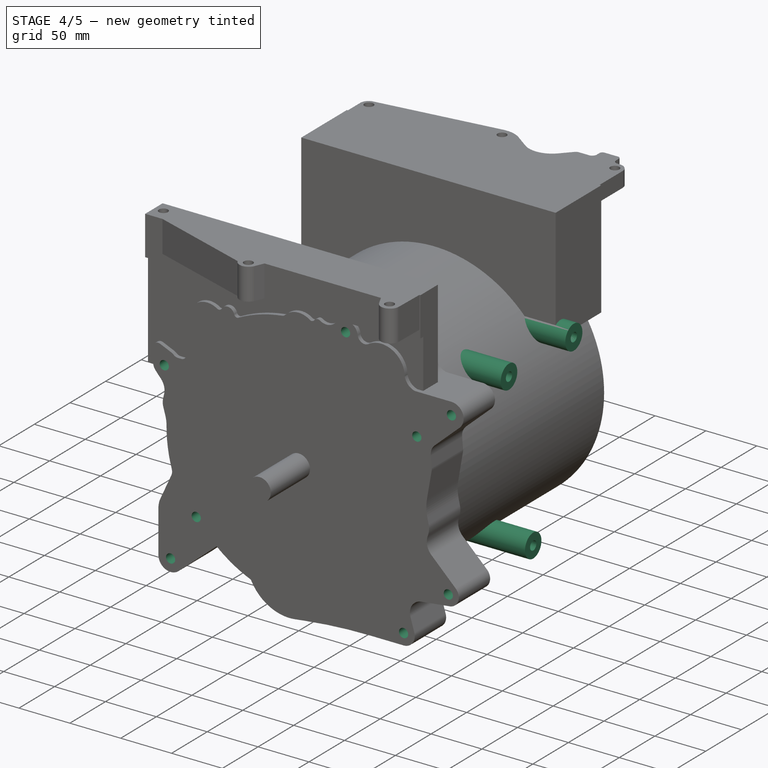
[diagram: stage 4 of 5 — iso view after this stage's code; geometry added in this stage tinted green]
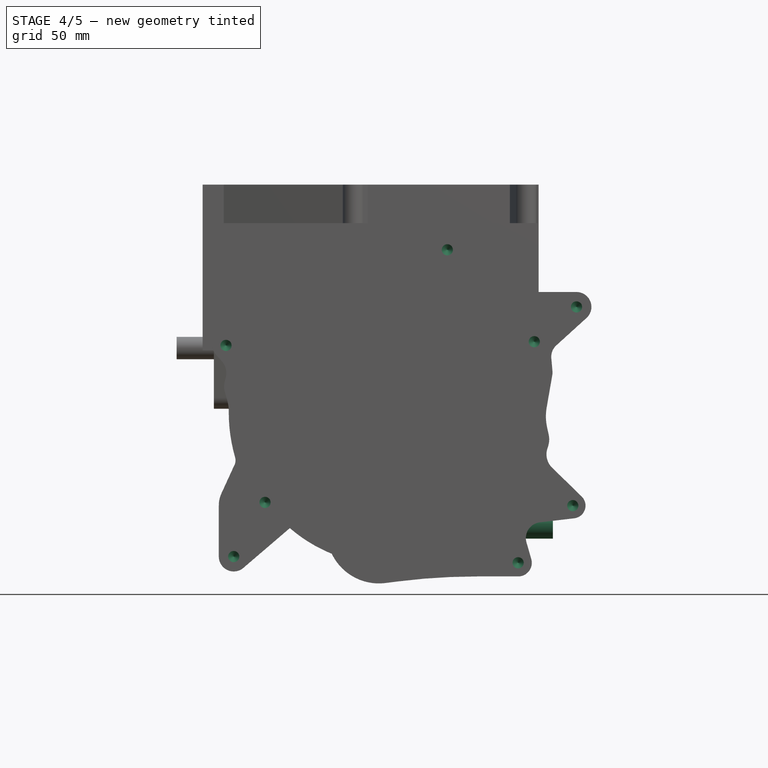
[diagram: stage 4 of 5 — front view after this stage's code; geometry added in this stage tinted green]
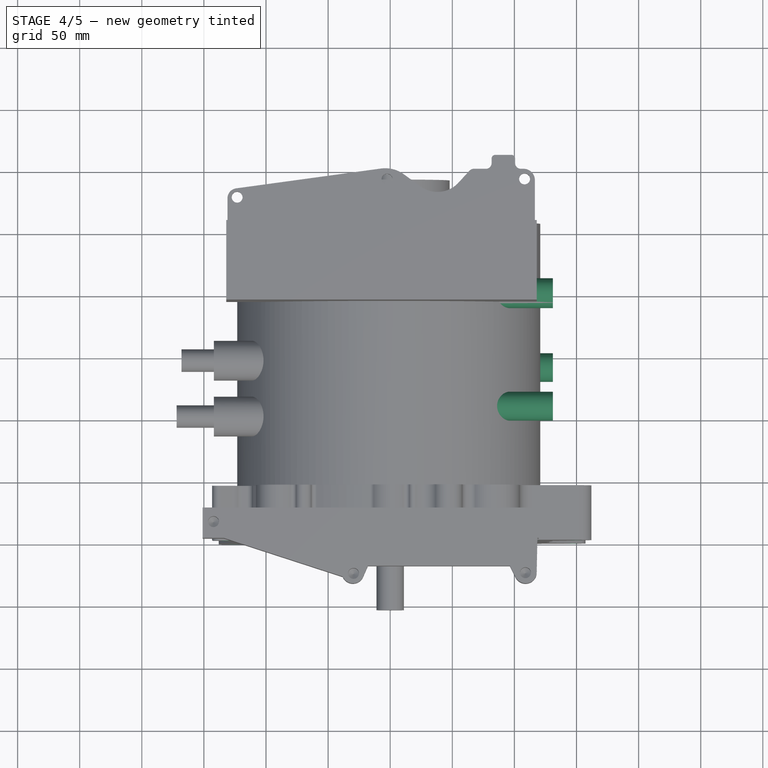
[diagram: stage 4 of 5 — top view after this stage's code; geometry added in this stage tinted green]
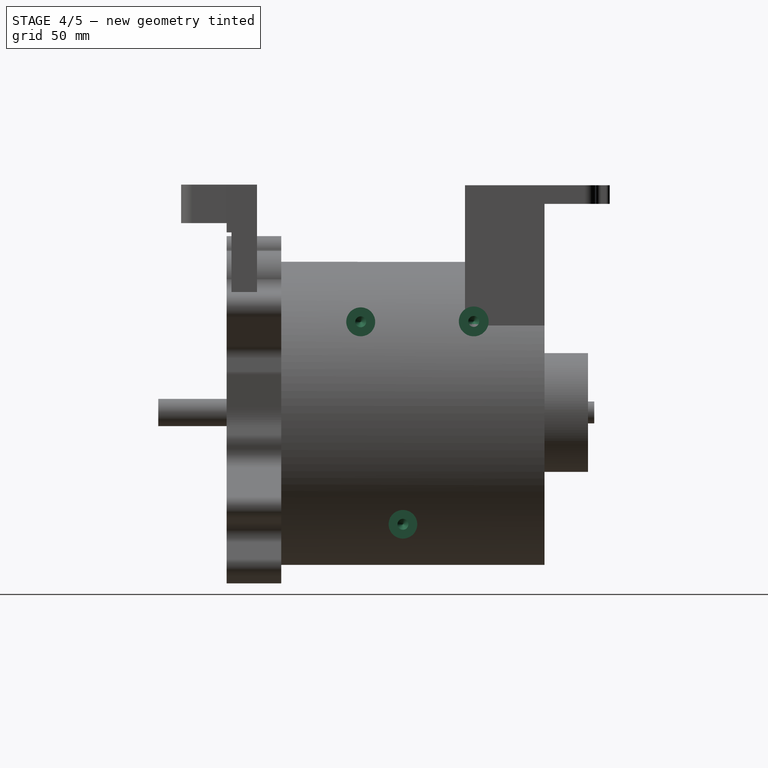
[diagram: stage 4 of 5 — right view after this stage's code; geometry added in this stage tinted green]
FEATURE [Sketcher::SketchObject] Sketch014
  MapMode = 5
  Placement = pos=(0,0,0) rot=(1,0,0;1.5708rad)
  Support = -> [Hole]
  sketch-geometry (8):
    g0: Circle CenterX=150 CenterY=85 CenterZ=0 NormalX=0 NormalY=0 NormalZ=1 AngleXU=0 Radius=5
    g1: Circle CenterX=147 CenterY=-75 CenterZ=0 NormalX=0 NormalY=0 NormalZ=1 AngleXU=0 Radius=5
    g2: Circle CenterX=103 CenterY=-121 CenterZ=0 NormalX=0 NormalY=0 NormalZ=1 AngleXU=0 Radius=5
    g3: Circle CenterX=46 CenterY=131 CenterZ=0 NormalX=0 NormalY=0 NormalZ=1 AngleXU=0 Radius=5
    g4: Circle CenterX=116 CenterY=57 CenterZ=0 NormalX=0 NormalY=0 NormalZ=1 AngleXU=0 Radius=5
    g5: Circle CenterX=-126 CenterY=-116 CenterZ=0 NormalX=0 NormalY=0 NormalZ=1 AngleXU=0 Radius=5
    g6: Circle CenterX=-132.207 CenterY=54 CenterZ=0 NormalX=0 NormalY=0 NormalZ=1 AngleXU=0 Radius=5
    g7: Circle CenterX=-100.79 CenterY=-72.38 CenterZ=0 NormalX=0 NormalY=0 NormalZ=1 AngleXU=0 Radius=5
  constraints (24):
    c: Equal(g2,g1)
    c: Equal(g1,g4)
    c: Equal(g4,g0)
    c: Equal(g0,g3)
    c: Equal(g3,g6)
    c: Equal(g6,g7)
    c: Equal(g7,g5)
    c: Radius(g0) = 5
    c: DistanceY(g7,g-1) = 72.38
    c: DistanceX(g7,g-1) = 100.79
    c: DistanceX(g5,g-1) = 126
    c: DistanceY(g5,g-1) = 116
    c: DistanceX(g6,g-1) = 132.207
    c: DistanceY(g-1,g6) = 54
    c: DistanceX(g-1,g3) = 46
    c: DistanceY(g-1,g3) = 131
    c: DistanceX(g-1,g0) = 150
    c: DistanceY(g-1,g0) = 85
    c: DistanceX(g-1,g4) = 116
    c: DistanceY(g-1,g4) = 57
    c: DistanceX(g-1,g1) = 147
    c: DistanceY(g1,g-1) = 75
    c: DistanceX(g-1,g2) = 103
    c: DistanceY(g2,g-1) = 121
FEATURE [PartDesign::Hole] Hole001
  BaseFeature = -> Hole
  Depth = 25
  DepthType = 0
  Diameter = 9
  DrillPoint = 1
  DrillPointAngle = 118
  HoleCutCountersinkAngle = 90
  HoleCutDepth = 0
  HoleCutDiameter = 0
  HoleCutType = 0
  ModelActualThread = false
  Placement = pos=(0,0,0) rot=(1,0,0;1.5708rad)
  Profile = -> Sketch014
  Tapered = false
  TaperedAngle = 90
  ThreadAngle = 0
  ThreadClass = 0
  ThreadCutOffInner = 0
  ThreadCutOffOuter = 0
  ThreadDirection = 0
  ThreadFit = 0
  ThreadPitch = 0
  ThreadSize = 0
  ThreadType = 0
  Threaded = false
FEATURE [Sketcher::SketchObject] Sketch015
  MapMode = 5
  Placement = pos=(0,0,0) rot=(0.57735,0.57735,0.57735;2.0944rad)
  Support = -> [YZ_Plane]
  sketch-geometry (6):
    g0: Circle [constr] CenterX=108 CenterY=73 CenterZ=0 NormalX=0 NormalY=0 NormalZ=1 AngleXU=0 Radius=6
    g1: Circle CenterX=108 CenterY=73 CenterZ=0 NormalX=0 NormalY=0 NormalZ=1 AngleXU=0 Radius=11.6386
    g2: Circle [constr] CenterX=199 CenterY=73.3365 CenterZ=0 NormalX=0 NormalY=0 NormalZ=1 AngleXU=0 Radius=6
    g3: Circle CenterX=199 CenterY=73.3365 CenterZ=0 NormalX=0 NormalY=0 NormalZ=1 AngleXU=0 Radius=12
    g4: Circle [constr] CenterX=142 CenterY=-90 CenterZ=0 NormalX=0 NormalY=0 NormalZ=1 AngleXU=0 Radius=6
    g5: Circle CenterX=142 CenterY=-90 CenterZ=0 NormalX=0 NormalY=0 NormalZ=1 AngleXU=0 Radius=11.5224
  constraints (12):
    c: Coincident(g1,g0)
    c: Coincident(g3,g2)
    c: Coincident(g5,g4)
    c: Equal(g4,g2)
    c: Equal(g0,g4)
    c: Radius(g2) = 6
    c: Radius(g3) = 12
    c: DistanceY(g4,g-1) = 90
    c: DistanceY(g-1,g0) = 73
    c: DistanceX(g-1,g0) = 108
    c: DistanceX(g-1,g4) = 142
    c: DistanceX(g-1,g2) = 199
FEATURE [PartDesign::Pad] Pad013
  BaseFeature = -> Hole001
  Length = 131
  Length2 = 100
  Placement = pos=(0,0,0) rot=(1,0,0;1.5708rad)
  Profile = -> Sketch015
  Type = 0
FEATURE [Sketcher::SketchObject] Sketch016
  ExternalGeometry = -> [Pad013]
  MapMode = 5
  Placement = pos=(131,-2.88e-14,2.88e-14) rot=(0.707107,0,0.707107;3.14159rad)
  Support = -> [Pad013]
  sketch-geometry (3):
    g0: Circle CenterX=73 CenterY=-108 CenterZ=0 NormalX=0 NormalY=0 NormalZ=1 AngleXU=0 Radius=5
    g1: Circle CenterX=73.3365 CenterY=-199 CenterZ=0 NormalX=0 NormalY=0 NormalZ=1 AngleXU=0 Radius=5
    g2: Circle CenterX=-90 CenterY=-142 CenterZ=0 NormalX=0 NormalY=0 NormalZ=1 AngleXU=0 Radius=5
  constraints (3):
    c: Equal(g1,g0)
    c: Equal(g0,g2)
    c: Radius(g0) = 5
FEATURE [PartDesign::Hole] Hole002  label="Side_Holes"
  BaseFeature = -> Pad013
  Depth = 25
  DepthType = 0
  Diameter = 8.8
  DrillPoint = 1
  DrillPointAngle = 118
  HoleCutCountersinkAngle = 90
  HoleCutDepth = 0
  HoleCutDiameter = 8
  HoleCutType = 0
  ModelActualThread = false
  Placement = pos=(0,0,0) rot=(1,0,0;1.5708rad)
  Profile = -> Sketch016
  Tapered = false
  TaperedAngle = 90
  ThreadAngle = 0
  ThreadClass = 4
  ThreadCutOffInner = 0
  ThreadCutOffOuter = 0
  ThreadDirection = 0
  ThreadFit = 0
  ThreadPitch = 0
  ThreadSize = 8
  ThreadType = 1
  Threaded = false
FEATURE [Sketcher::SketchObject] Sketch017
  MapMode = 5
  Placement = pos=(-6.95807,3.02218,-3.3e-15) rot=(0.699595,-0.145372,0.699595;2.85287rad)
  Support = -> [Pad012]
  sketch-geometry (4):
    g0: LineSegment StartX=45.449 StartY=-103.839 StartZ=0 EndX=-34.9553 EndY=-103.839 EndZ=0
    g1: LineSegment StartX=-34.9553 StartY=-103.839 StartZ=0 EndX=-34.9553 EndY=-160.376 EndZ=0
    g2: LineSegment StartX=-34.9553 StartY=-160.376 StartZ=0 EndX=45.449 EndY=-160.376 EndZ=0
    g3: LineSegment StartX=45.449 StartY=-160.376 StartZ=0 EndX=45.449 EndY=-103.839 EndZ=0
  constraints (8):
    c: Coincident(g0,g1)
    c: Coincident(g1,g2)
    c: Coincident(g2,g3)
    c: Coincident(g3,g0)
    c: Horizontal(g0)
    c: Horizontal(g2)
    c: Vertical(g1)
    c: Vertical(g3)
FEATURE [PartDesign::Pad] Pad014
  BaseFeature = -> Hole002
  Length = 29
  Length2 = 100
  Placement = pos=(0,0,0) rot=(1,0,0;1.5708rad)
  Profile = -> Sketch017
  Type = 0
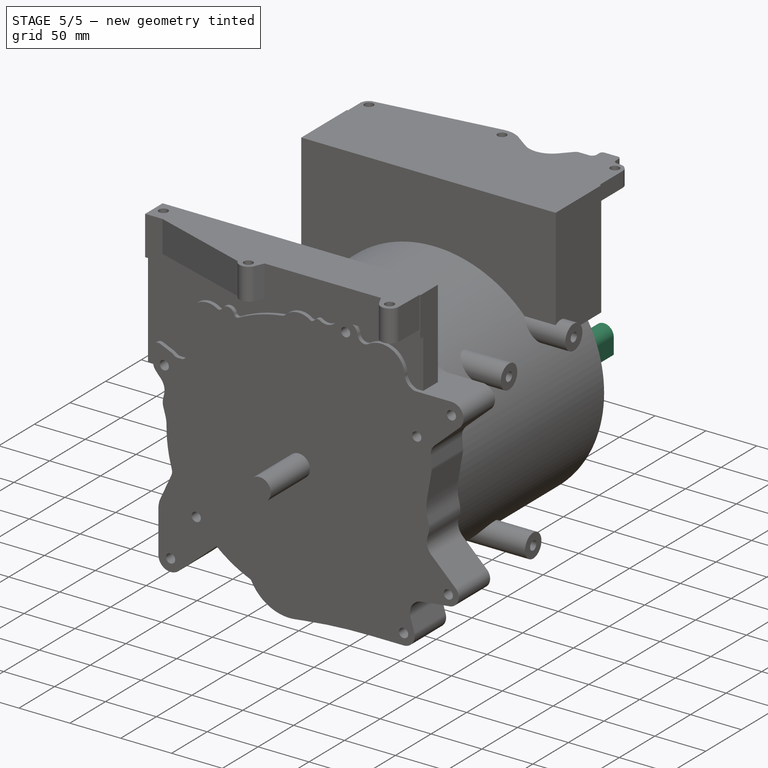
[diagram: stage 5 of 5 — iso view after this stage's code; geometry added in this stage tinted green]
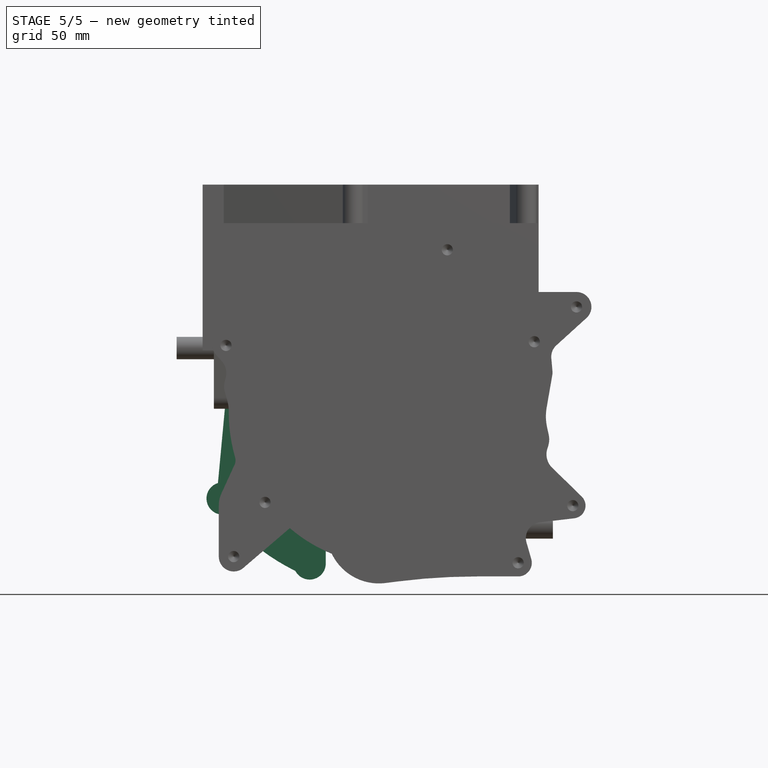
[diagram: stage 5 of 5 — front view after this stage's code; geometry added in this stage tinted green]
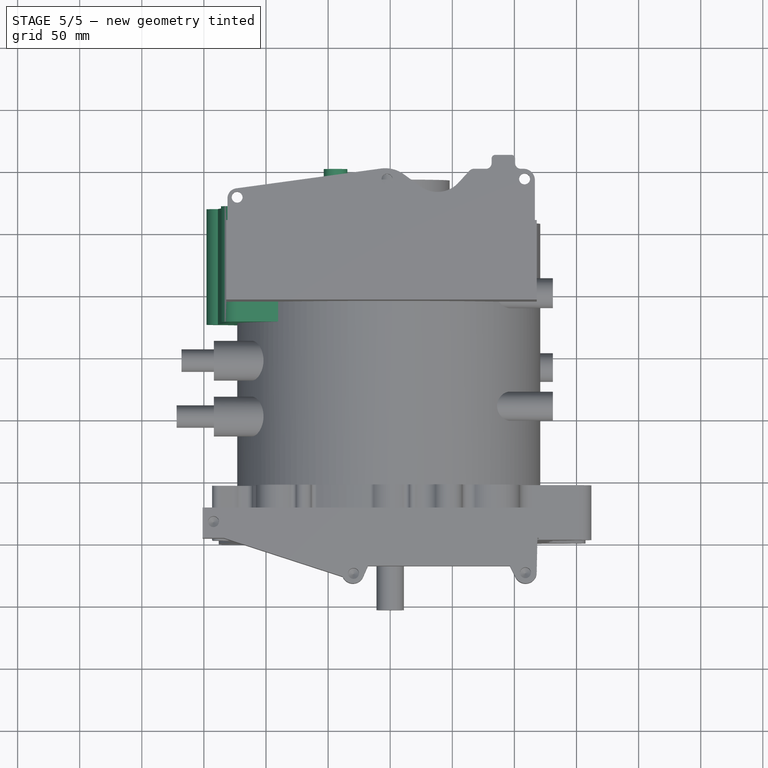
[diagram: stage 5 of 5 — top view after this stage's code; geometry added in this stage tinted green]
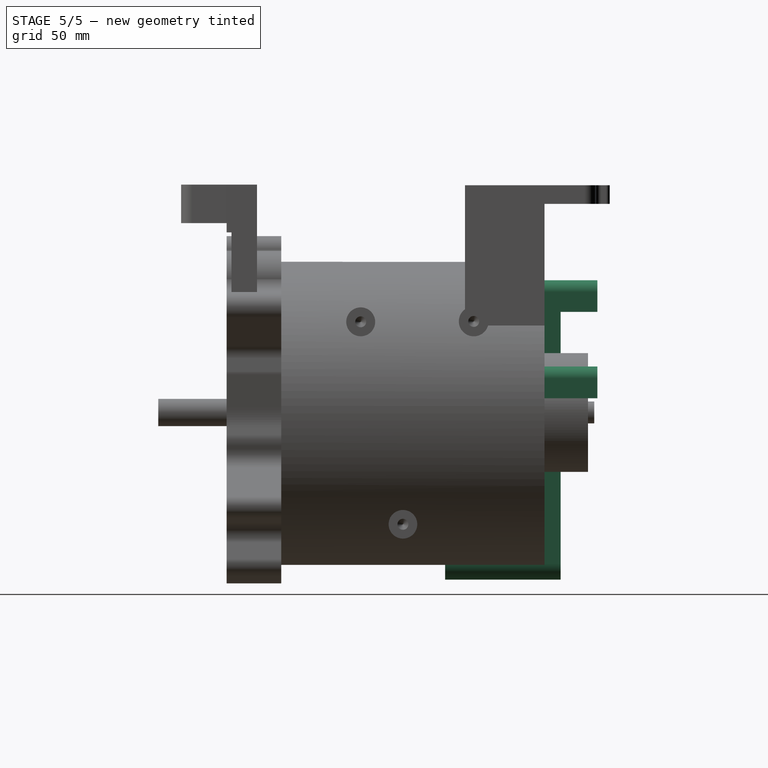
[diagram: stage 5 of 5 — right view after this stage's code; geometry added in this stage tinted green]
FEATURE [PartDesign::Plane] DatumPlane  label="rear_pads_plane_1"
  AttachmentOffset = pos=(0,0,-298.5) rot=(0,0,1;0rad)
  Length = 399.39
  MapMode = 5
  Placement = pos=(0,298.5,6.63e-14) rot=(1,0,0;1.5708rad)
  ResizeMode = 0
  Support = -> [XZ_Plane]
  Width = 386.334
FEATURE [Sketcher::SketchObject] Sketch010
  MapMode = 5
  Placement = pos=(0,298.5,6.63e-14) rot=(1,0,0;1.5708rad)
  Support = -> [DatumPlane]
  sketch-geometry (8):
    g0: ArcOfCircle CenterX=-44 CenterY=97 CenterZ=0 NormalX=0 NormalY=0 NormalZ=1 AngleXU=0 Radius=9.5 StartAngle=4.97589e-08 EndAngle=3.14159
    g1: LineSegment StartX=-34.5 StartY=81 StartZ=0 EndX=-53.5 EndY=81 EndZ=0
    g2: LineSegment StartX=-53.5 StartY=81 StartZ=0 EndX=-53.5 EndY=97 EndZ=0
    g3: LineSegment StartX=-34.5 StartY=81 StartZ=0 EndX=-34.5 EndY=97 EndZ=0
    g4: ArcOfCircle CenterX=91 CenterY=27.5 CenterZ=0 NormalX=0 NormalY=0 NormalZ=1 AngleXU=0 Radius=9.5 StartAngle=2e-16 EndAngle=3.14159
    g5: LineSegment StartX=100.5 StartY=27.5 StartZ=0 EndX=100.5 EndY=11.5 EndZ=0
    g6: LineSegment StartX=100.5 StartY=11.5 StartZ=0 EndX=81.5 EndY=11.5 EndZ=0
    g7: LineSegment StartX=81.5 StartY=11.5 StartZ=0 EndX=81.5 EndY=27.5 EndZ=0
  constraints (24):
    c: Horizontal(g1)
    c: Coincident(g2,g1)
    c: Vertical(g2)
    c: Coincident(g3,g1)
    c: Vertical(g3)
    c: Coincident(g0,g3)
    c: Coincident(g0,g2)
    c: DistanceX(g1,g1) = 19
    c: DistanceY(g1,g0) = 16
    c: DistanceX(g0,g-1) = 44
    c: DistanceY(g-1,g0) = 97
    c: Vertical(g5)
    c: Coincident(g6,g5)
    c: Horizontal(g6)
    c: Coincident(g7,g6)
    c: Tangent(g7,g4)
    c: Vertical(g7)
    c: Coincident(g4,g7)
    c: Tangent(g4,g5) = 1.5708
    c: Equal(g4,g0)
    c: Equal(g6,g1)
    c: Equal(g5,g3)
    c: DistanceX(g-1,g4) = 91
    c: DistanceY(g-1,g4) = 27.5
FEATURE [PartDesign::Plane] DatumPlane001
  AttachmentOffset = pos=(0,0,269) rot=(0,0,1;0rad)
  Length = 399.39
  MapMode = 5
  Placement = pos=(0,269,5.97e-14) rot=(0,0.707107,0.707107;3.14159rad)
  ResizeMode = 0
  Support = -> [XZ_Plane]
  Width = 386.334
FEATURE [Sketcher::SketchObject] Sketch018
  MapMode = 5
  Placement = pos=(0,269,5.97e-14) rot=(0,0.707107,0.707107;3.14159rad)
  Support = -> [DatumPlane001]
  sketch-geometry (7):
    g0: ArcOfCircle CenterX=134.91 CenterY=-69.24 CenterZ=0 NormalX=0 NormalY=0 NormalZ=1 AngleXU=0 Radius=13 StartAngle=4.61588 EndAngle=7.55775
    g1: ArcOfCircle CenterX=64.86 CenterY=-121.53 CenterZ=0 NormalX=0 NormalY=0 NormalZ=1 AngleXU=0 Radius=13 StartAngle=3.14159 EndAngle=5.79998
    g2: ArcOfCircle CenterX=123.23 CenterY=69.69 CenterZ=0 NormalX=0 NormalY=0 NormalZ=1 AngleXU=0 Radius=13 StartAngle=5.09223 EndAngle=7.85398
    g3: LineSegment StartX=128.05 StartY=57.6166 StartZ=0 EndX=138.705 EndY=-56.8062 EndZ=0
    g4: ArcOfCircle CenterX=0 CenterY=27.66 CenterZ=0 NormalX=0 NormalY=0 NormalZ=1 AngleXU=0 Radius=173 StartAngle=5.16961 EndAngle=5.59529
    g5: LineSegment StartX=51.86 StartY=82.69 StartZ=0 EndX=51.86 EndY=-121.53 EndZ=0
    g6: LineSegment StartX=123.23 StartY=82.69 StartZ=0 EndX=51.86 EndY=82.69 EndZ=0
  constraints (24):
    c: Vertical(g-1,g4)
    c: DistanceX(g-1,g2) = 123.23
    c: DistanceX(g-1,g0) = 134.91
    c: DistanceX(g-1,g1) = 64.86
    c: DistanceY(g1,g-1) = 121.53
    c: DistanceY(g0,g-1) = 69.24
    c: DistanceY(g-1,g2) = 69.69
    c: Vertical(g5)
    c: Angle(g-1,g3) = 1.66365
    c: Coincident(g0,g4)
    c: Coincident(g0,g3)
    c: Coincident(g2,g3)
    c: Coincident(g1,g4)
    c: Equal(g2,g0)
    c: Equal(g0,g1)
    c: Radius(g0) = 13
    c: Radius(g4) = 173
    c: Coincident(g6,g2)
    c: Horizontal(g6)
    c: Tangent(g2,g6)
    c: Coincident(g5,g6)
    c: Tangent(g1,g5) = -1.5708
    c: DistanceY(g-1,g4) = 27.66
    c: DistanceX(g-1,g2) = 128.05
FEATURE [PartDesign::Pad] Pad015
  BaseFeature = -> Pad014
  Length = 93
  Length2 = 100
  Placement = pos=(0,0,0) rot=(1,0,0;1.5708rad)
  Profile = -> Sketch018
  Reversed = true
  Type = 0
FEATURE [Sketcher::SketchObject] Sketch019
  MapMode = 5
  Placement = pos=(-1.1e-14,269,-8.1e-14) rot=(-1,0,0;1.5708rad)
  sketch-geometry (3):
    g0: Circle CenterX=-123.23 CenterY=-69.69 CenterZ=0 NormalX=0 NormalY=0 NormalZ=1 AngleXU=0 Radius=5
    g1: Circle CenterX=-134.91 CenterY=69.24 CenterZ=0 NormalX=0 NormalY=0 NormalZ=1 AngleXU=0 Radius=5
    g2: Circle CenterX=-64.86 CenterY=121.53 CenterZ=0 NormalX=0 NormalY=0 NormalZ=1 AngleXU=0 Radius=5
  constraints (3):
    c: Equal(g0,g1)
    c: Equal(g1,g2)
    c: Radius(g2) = 5
FEATURE [PartDesign::Hole] Hole003
  BaseFeature = -> Pad015
  Depth = 25
  DepthType = 0
  Diameter = 8.8
  DrillPoint = 1
  DrillPointAngle = 118
  HoleCutCountersinkAngle = 90
  HoleCutDepth = 0
  HoleCutDiameter = 8
  HoleCutType = 0
  ModelActualThread = false
  Placement = pos=(0,0,0) rot=(1,0,0;1.5708rad)
  Profile = -> Sketch019
  Tapered = false
  TaperedAngle = 90
  ThreadAngle = 0
  ThreadClass = 4
  ThreadCutOffInner = 0
  ThreadCutOffOuter = 0
  ThreadDirection = 0
  ThreadFit = 0
  ThreadPitch = 0
  ThreadSize = 8
  ThreadType = 1
  Threaded = false
FEATURE [Sketcher::SketchObject] Sketch020
  MapMode = 5
  Placement = pos=(0,298.5,-3.3e-14) rot=(-1,0,0;1.5708rad)
  sketch-geometry (2):
    g0: Circle CenterX=91 CenterY=-27.5 CenterZ=0 NormalX=0 NormalY=0 NormalZ=1 AngleXU=0 Radius=5
    g1: Circle CenterX=-44 CenterY=-97 CenterZ=0 NormalX=0 NormalY=0 NormalZ=1 AngleXU=0 Radius=5
  constraints (2):
    c: Equal(g1,g0)
    c: Radius(g0) = 5
FEATURE [PartDesign::Pad] Pad016
  BaseFeature = -> Hole003
  Length = 50
  Length2 = 100
  Placement = pos=(0,0,0) rot=(1,0,0;1.5708rad)
  Profile = -> Sketch010
  Type = 0
FEATURE [PartDesign::Hole] Hole004
  BaseFeature = -> Pad016
  Depth = 25
  DepthType = 0
  Diameter = 8.8
  DrillPoint = 1
  DrillPointAngle = 118
  HoleCutCountersinkAngle = 90
  HoleCutDepth = 0
  HoleCutDiameter = 8
  HoleCutType = 0
  ModelActualThread = false
  Placement = pos=(0,0,0) rot=(1,0,0;1.5708rad)
  Profile = -> Sketch020
  Tapered = false
  TaperedAngle = 90
  ThreadAngle = 0
  ThreadClass = 0
  ThreadCutOffInner = 0
  ThreadCutOffOuter = 0
  ThreadDirection = 0
  ThreadFit = 0
  ThreadPitch = 0
  ThreadSize = 8
  ThreadType = 1
  Threaded = false
FEATURE [PartDesign::Body] Body
  Group = -> [Sketch,Pad,Sketch001,Pad001,Sketch002,Pad002,Sketch003,Pad003,Sketch004,Pad004,Sketch005,Pad005,Sketch006,Pad006,Sketch007,Pad007,Sketch008,Pad008,Sketch009,Pad009,Sketch010,Sketch011,Pad011,Sketch012,Pad012,Sketch013,Hole,Sketch014,Hole001,Sketch015,Pad013,Sketch016,Hole002,Sketch017,Pad014,DatumPlane,DatumPlane001,Sketch018,Pad015,Sketch019,Hole003,Sketch020,Pad016,Hole004]
  Origin = -> Origin
  Tip = -> Hole004
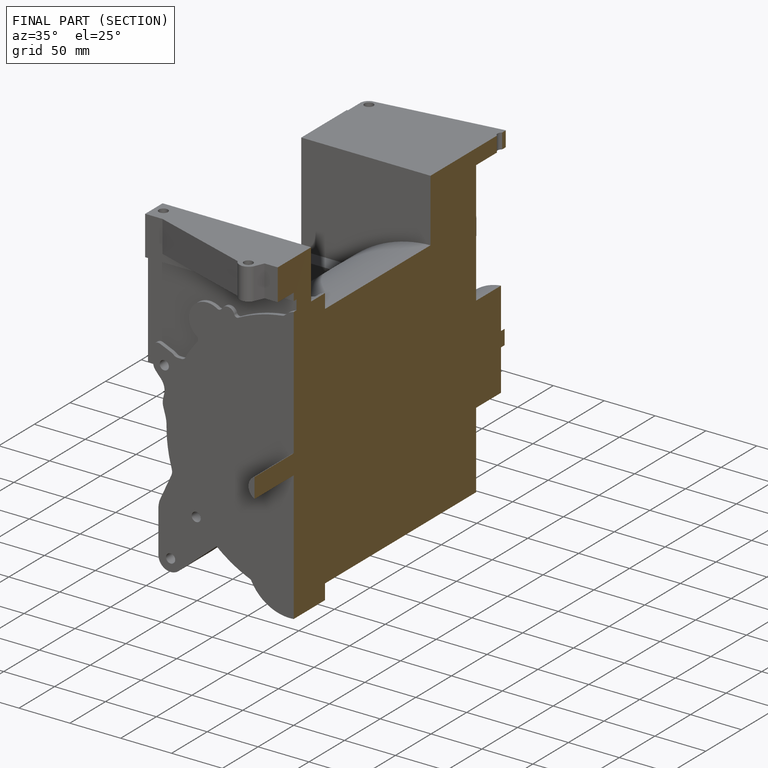
[diagram: finished part — half-section view (interior)]
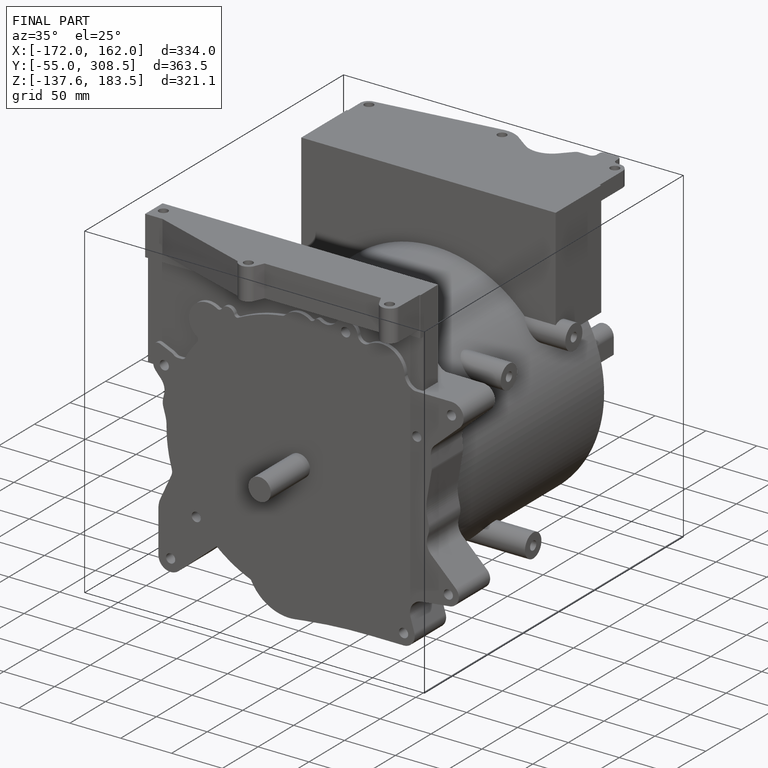
[diagram: finished part — iso view with bounding-box wireframe]
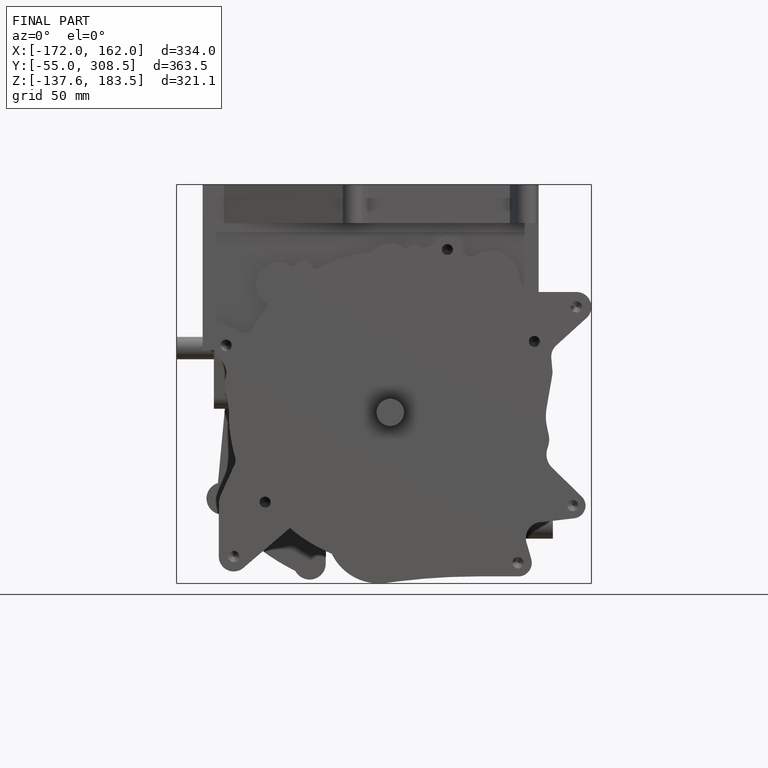
[diagram: finished part — front view with bounding-box wireframe]
